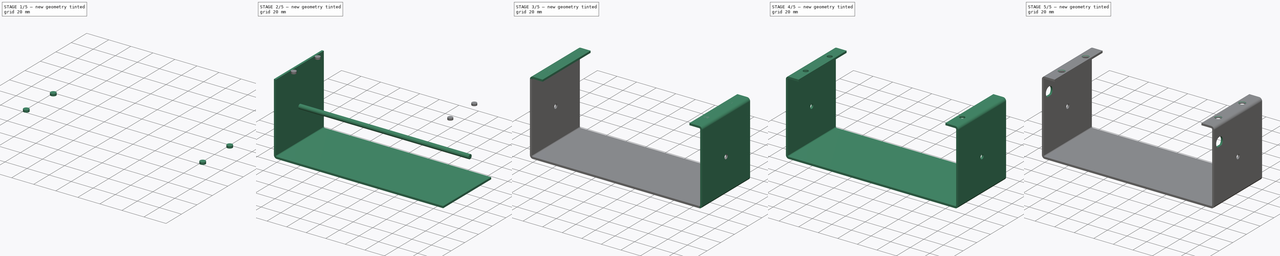
[diagram: build sequence overview — one tinted view per stage of 5, left to right]
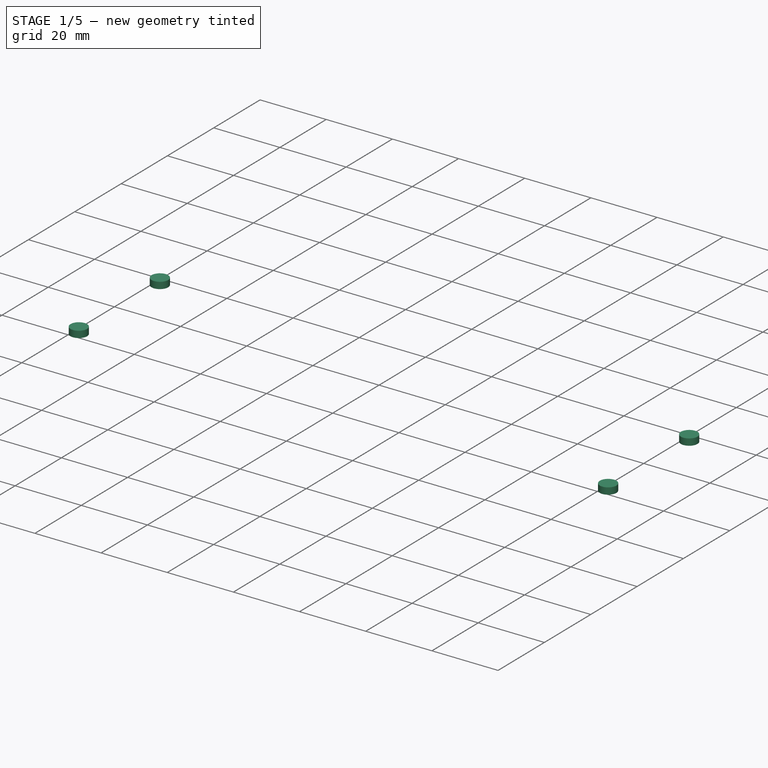
[diagram: stage 1 of 5 — iso view after this stage's code; geometry added in this stage tinted green]
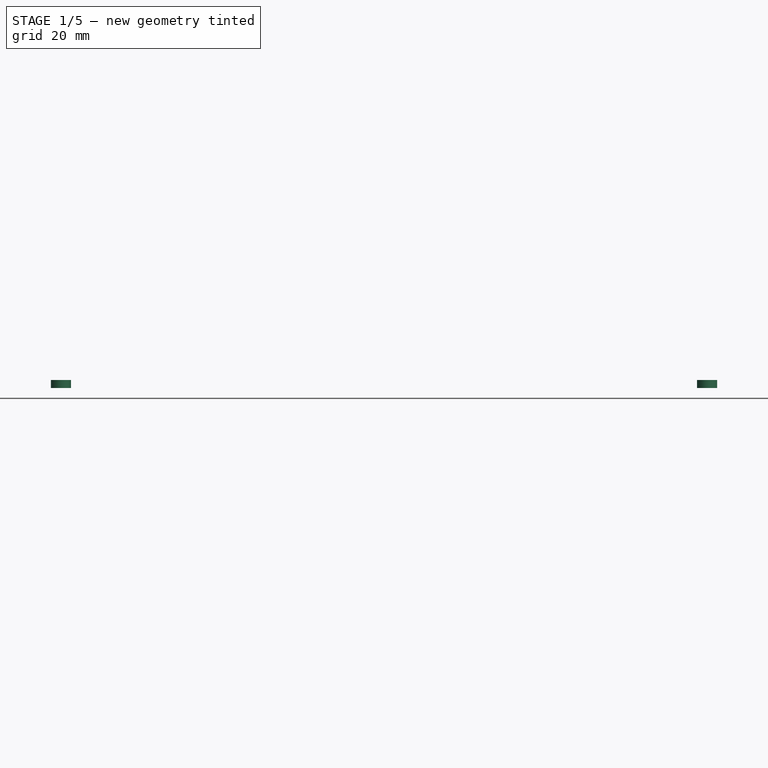
[diagram: stage 1 of 5 — front view after this stage's code; geometry added in this stage tinted green]
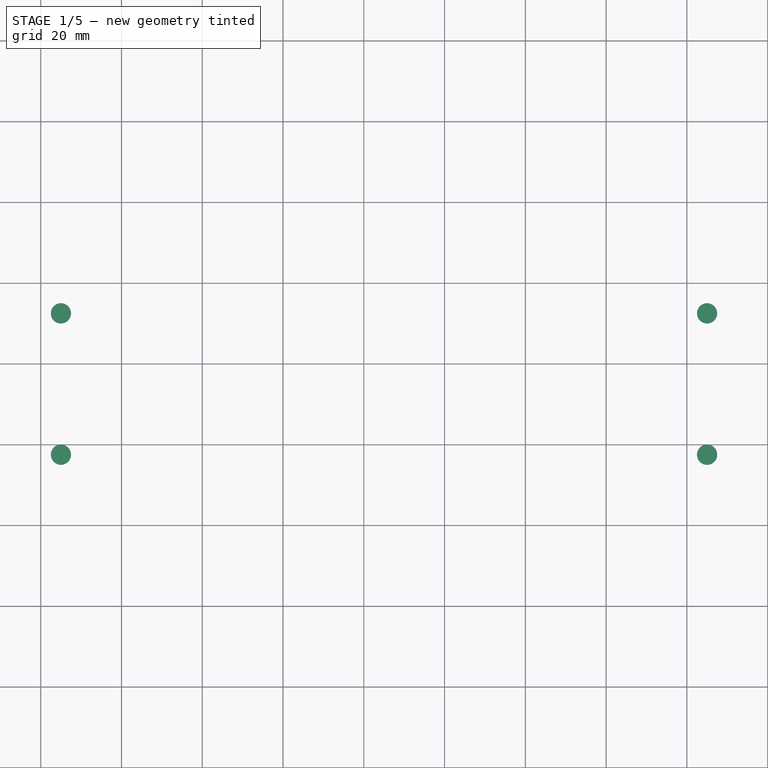
[diagram: stage 1 of 5 — top view after this stage's code; geometry added in this stage tinted green]
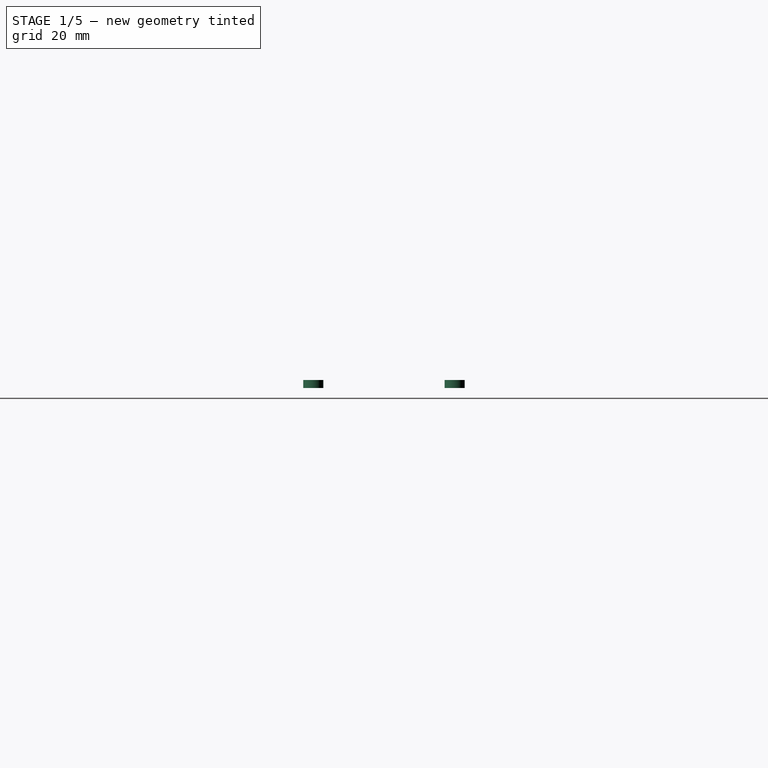
[diagram: stage 1 of 5 — right view after this stage's code; geometry added in this stage tinted green]
FCSTD DOCUMENT  (FreeCAD 0.17R11624 (Git))
Label: cover_base
License: All rights reserved
LicenseURL: http://en.wikipedia.org/wiki/All_rights_reserved
objects: Drawing::FeatureViewPython×39, Part::Cut×6, Part::Cylinder×5, Part::FeaturePython×4, Drawing::FeatureViewPart×4, Part::Box×1, Sketcher::SketchObject×1, Part::Extrusion×1, Part::Chamfer×1, Drawing::FeaturePage×1
note: 19 computed .brp shape members not serialized (recipe doc carries the construction recipe); baked Part::Feature solids carry a one-line shape summary decoded from their .brp

FEATURE [Part::Cylinder] Cylinder001  label="Cover Top Mount"
  Angle = 360
  AttacherType = Attacher::AttachEngine3D
  Height = 2
  Placement = pos=(5,17.5,74) rot=(0,0,1;0rad)
  Radius = 2.5
FEATURE [Part::Cylinder] Cylinder002  label="Cover Top Mount001"
  Angle = 360
  AttacherType = Attacher::AttachEngine3D
  Height = 2
  Placement = pos=(5,52.5,74) rot=(0,0,1;0rad)
  Radius = 2.5
FEATURE [Part::Cylinder] Cylinder003  label="Cover Top Mount002"
  Angle = 360
  AttacherType = Attacher::AttachEngine3D
  Height = 2
  Placement = pos=(165,17.5,74) rot=(0,0,1;0rad)
  Radius = 2.5
FEATURE [Part::Cylinder] Cylinder004  label="Cover Top Mount003"
  Angle = 360
  AttacherType = Attacher::AttachEngine3D
  Height = 2
  Placement = pos=(165,52.5,74) rot=(0,0,1;0rad)
  Radius = 2.5
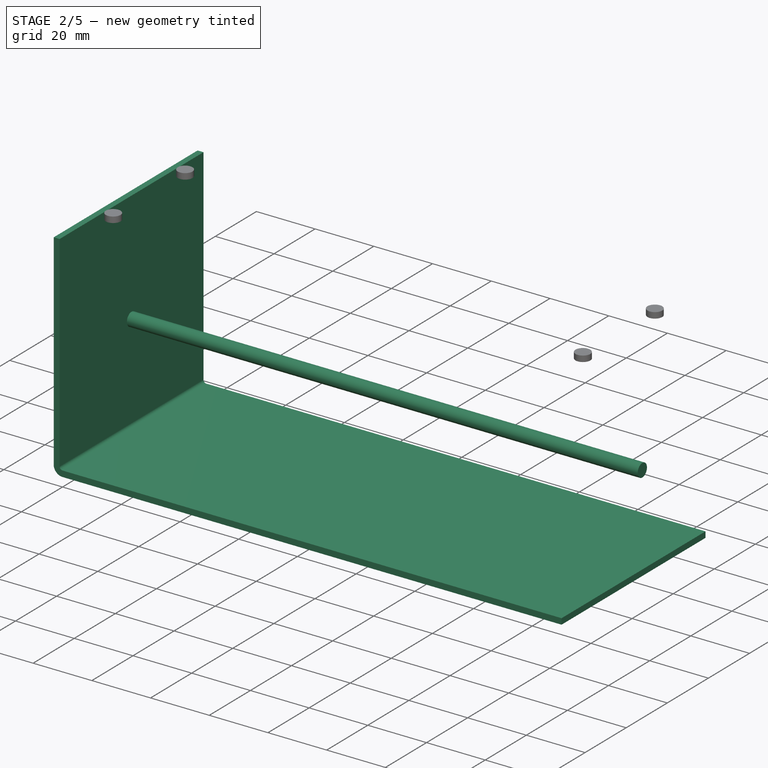
[diagram: stage 2 of 5 — iso view after this stage's code; geometry added in this stage tinted green]
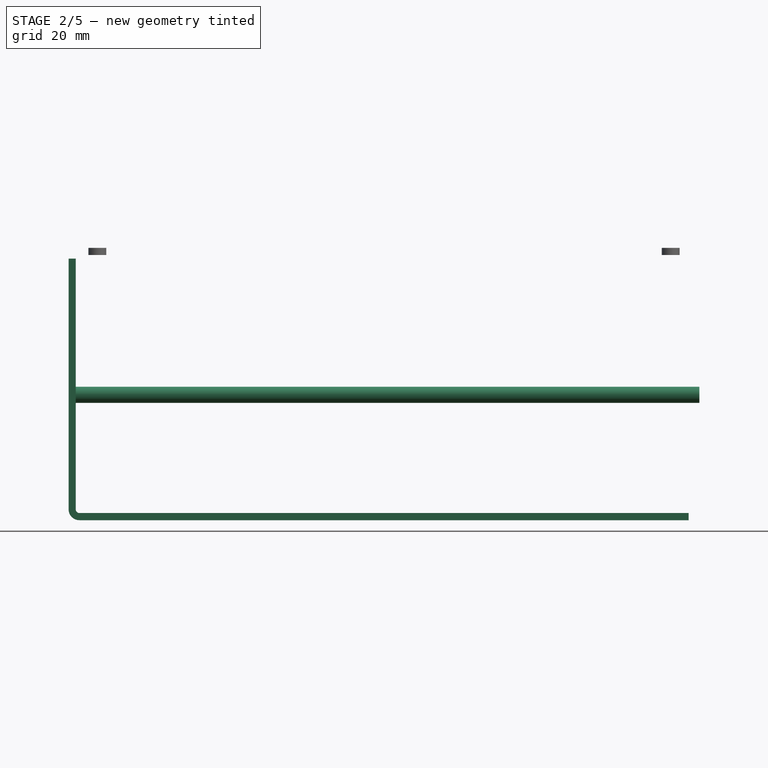
[diagram: stage 2 of 5 — front view after this stage's code; geometry added in this stage tinted green]
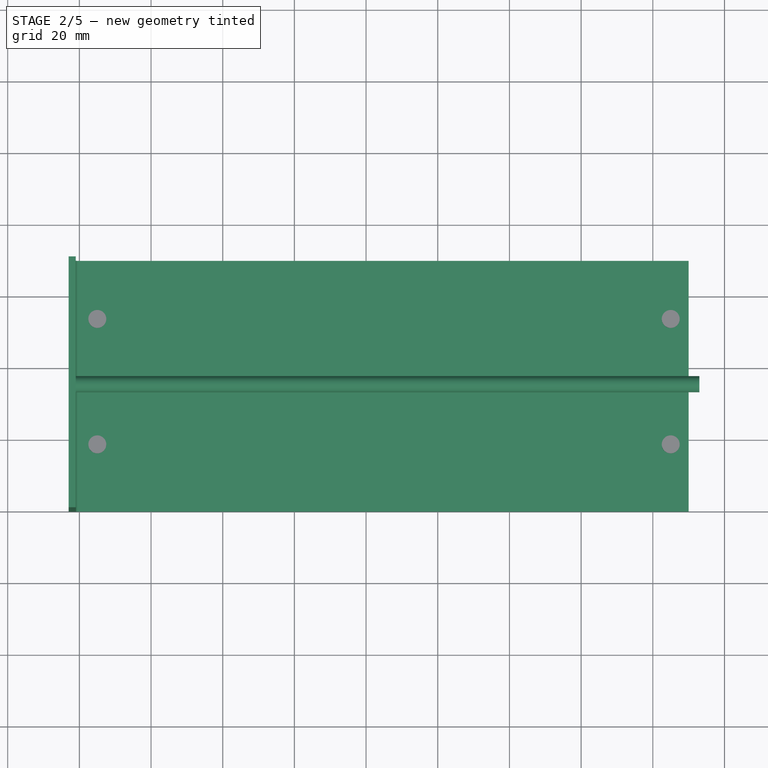
[diagram: stage 2 of 5 — top view after this stage's code; geometry added in this stage tinted green]
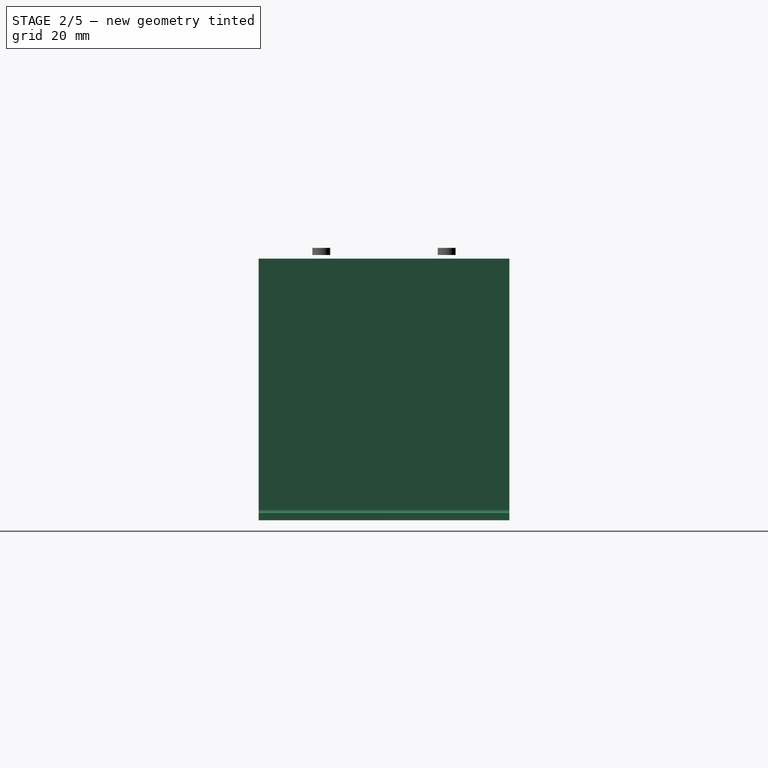
[diagram: stage 2 of 5 — right view after this stage's code; geometry added in this stage tinted green]
FEATURE [Part::Box] Box  label="Cube"
  AttacherType = Attacher::AttachEngine3D
  Height = 2
  Length = 170
  Width = 70
FEATURE [Part::FeaturePython] Bend  label="Left Wall"  # WARN: FeaturePython — macro-defined, semantics opaque (R4)
  angle = 90
  baseObject = -> Box [Face1]
  gap1 = 0
  gap2 = 0
  invert = false
  length = 70
  radius = 1
  reliefd = 1
  reliefw = 0.5
FEATURE [Part::Cylinder] Cylinder  label="Core Mount"
  Angle = 360
  AttacherType = Attacher::AttachEngine3D
  Height = 176
  Placement = pos=(-3,35,35) rot=(0,1,0;1.5708rad)
  Radius = 2.25
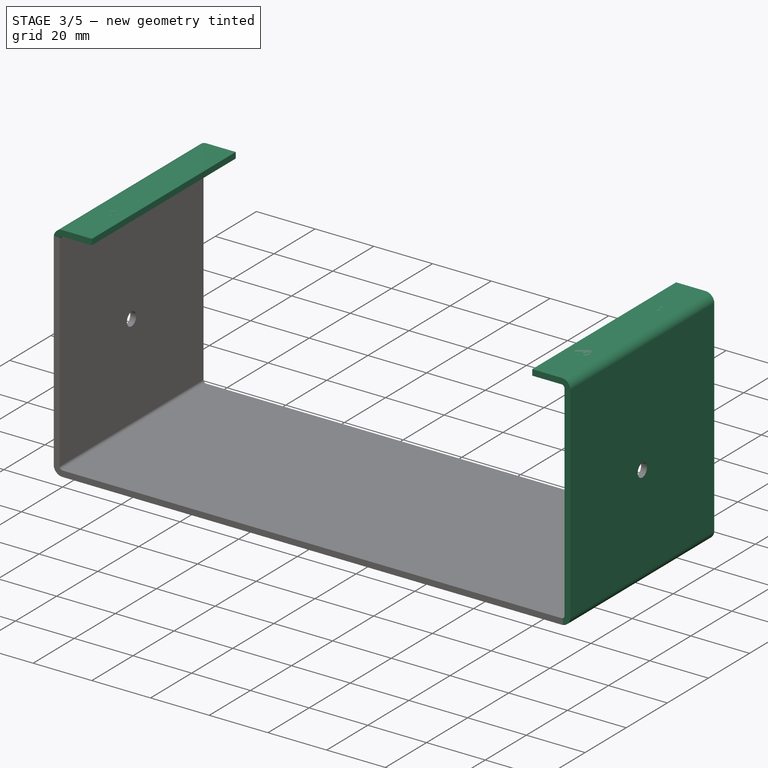
[diagram: stage 3 of 5 — iso view after this stage's code; geometry added in this stage tinted green]
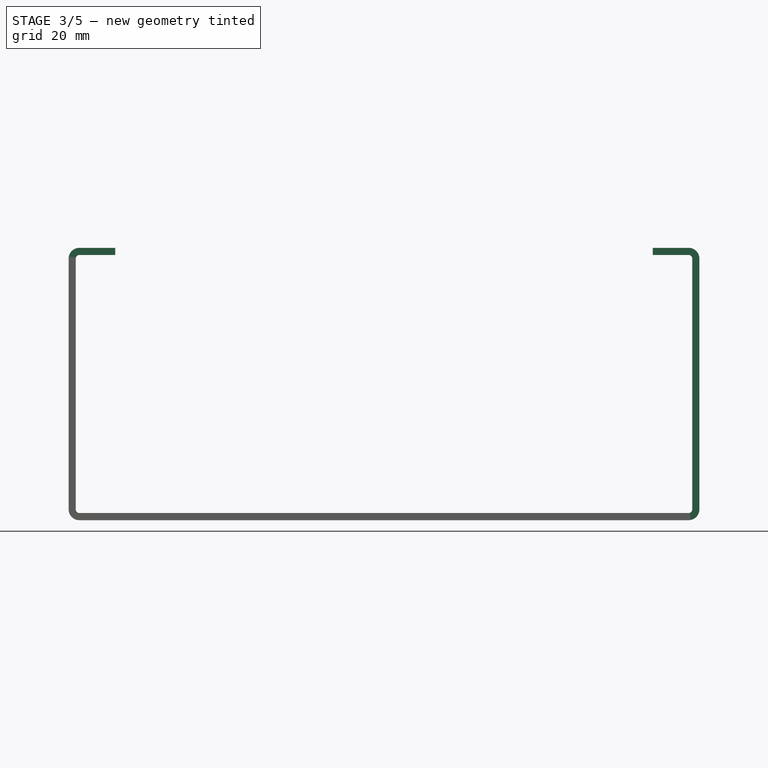
[diagram: stage 3 of 5 — front view after this stage's code; geometry added in this stage tinted green]
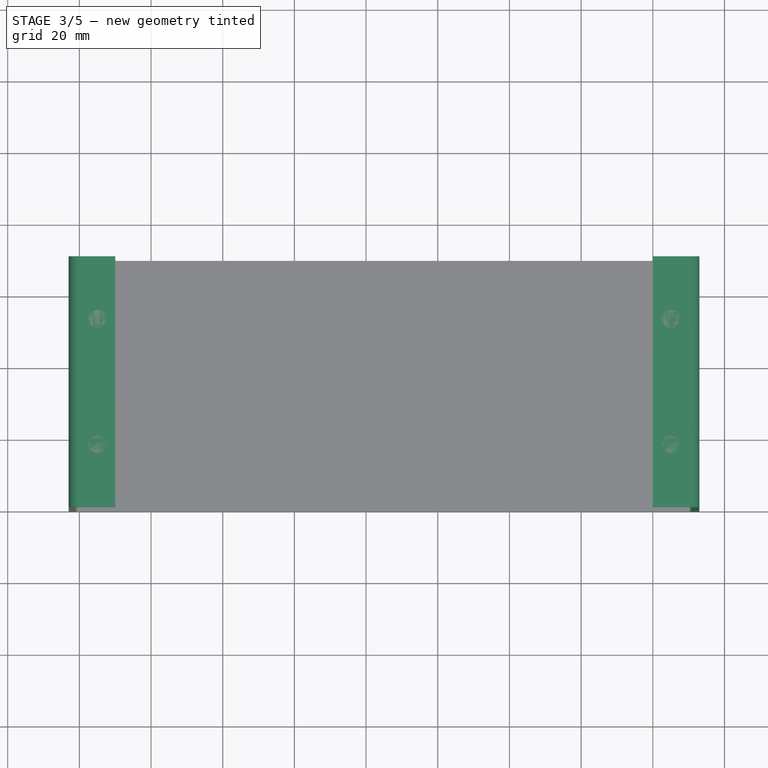
[diagram: stage 3 of 5 — top view after this stage's code; geometry added in this stage tinted green]
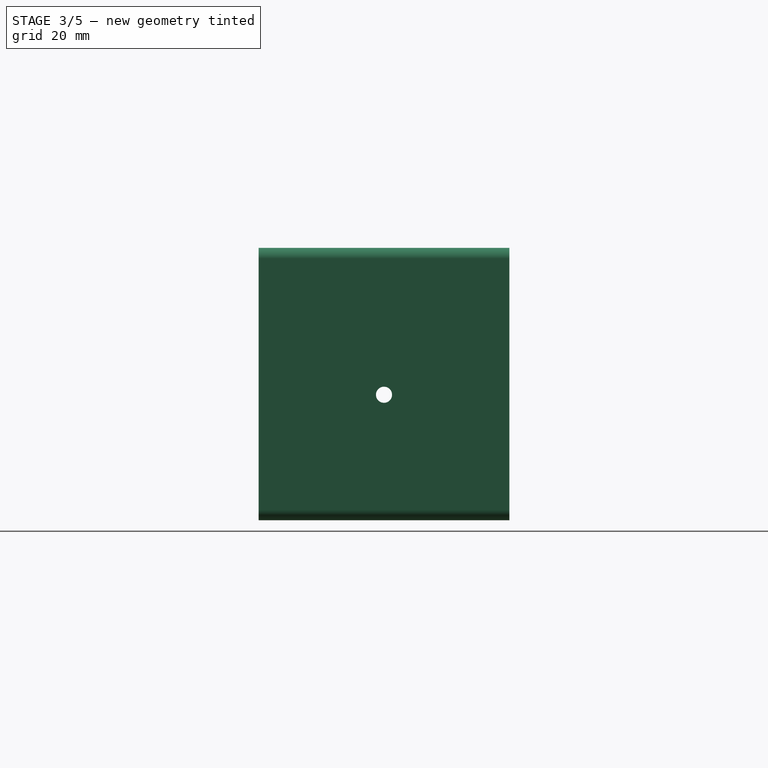
[diagram: stage 3 of 5 — right view after this stage's code; geometry added in this stage tinted green]
FEATURE [Part::FeaturePython] Bend001  label="Right Wall"  # WARN: FeaturePython — macro-defined, semantics opaque (R4)
  angle = 90
  baseObject = -> Bend [Face14]
  gap1 = 0
  gap2 = 0
  invert = false
  length = 70
  radius = 1
  reliefd = 1
  reliefw = 0.5
FEATURE [Part::FeaturePython] Bend002  label="Top Left Flange"  # WARN: FeaturePython — macro-defined, semantics opaque (R4)
  angle = 90
  baseObject = -> Bend001 [Face22]
  gap1 = 0
  gap2 = 0
  invert = false
  length = 10
  radius = 1
  reliefd = 1
  reliefw = 0.5
FEATURE [Part::FeaturePython] Bend003  label="Top Right Flange"  # WARN: FeaturePython — macro-defined, semantics opaque (R4)
  angle = 90
  baseObject = -> Bend002 [Face30]
  gap1 = 0
  gap2 = 0
  invert = false
  length = 10
  radius = 1
  reliefd = 1
  reliefw = 0.5
FEATURE [Part::Cut] Cut
  Base = -> Bend003
  Tool = -> Cylinder
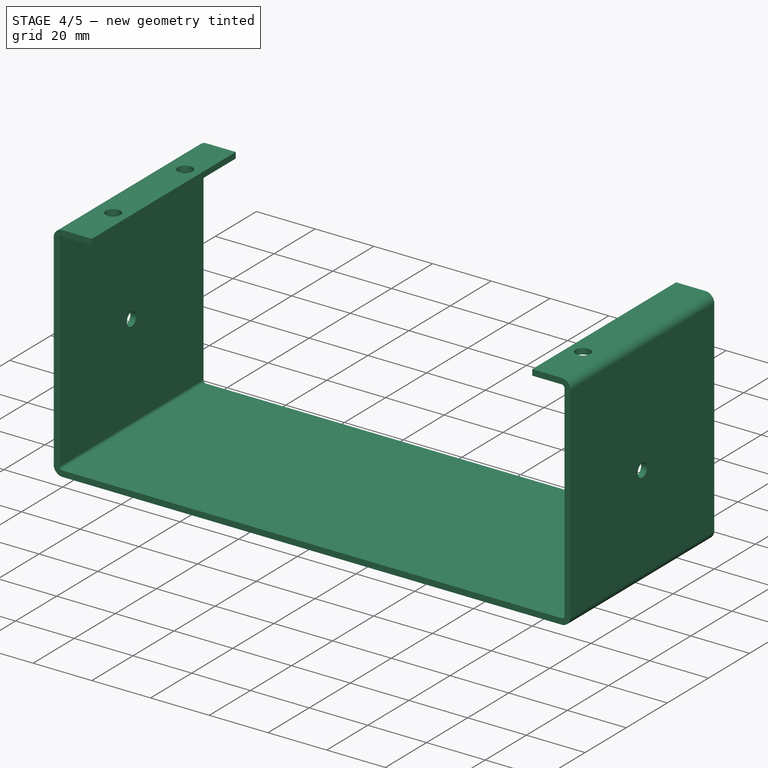
[diagram: stage 4 of 5 — iso view after this stage's code; geometry added in this stage tinted green]
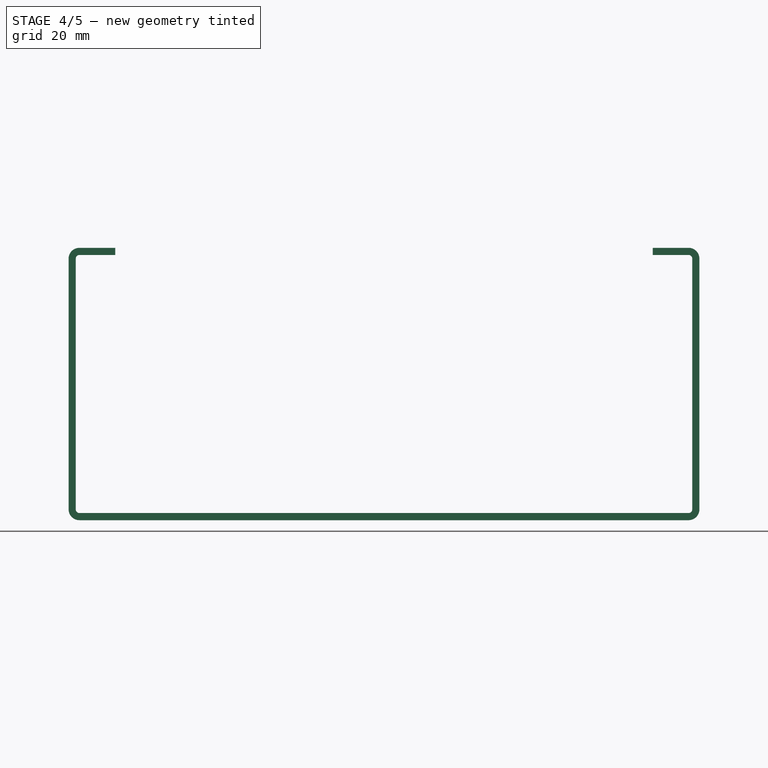
[diagram: stage 4 of 5 — front view after this stage's code; geometry added in this stage tinted green]
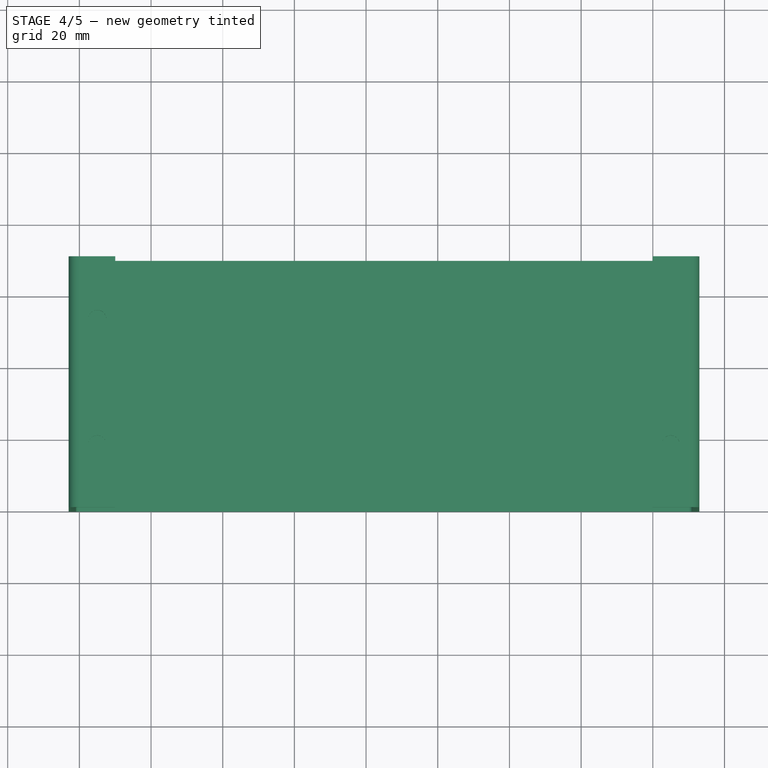
[diagram: stage 4 of 5 — top view after this stage's code; geometry added in this stage tinted green]
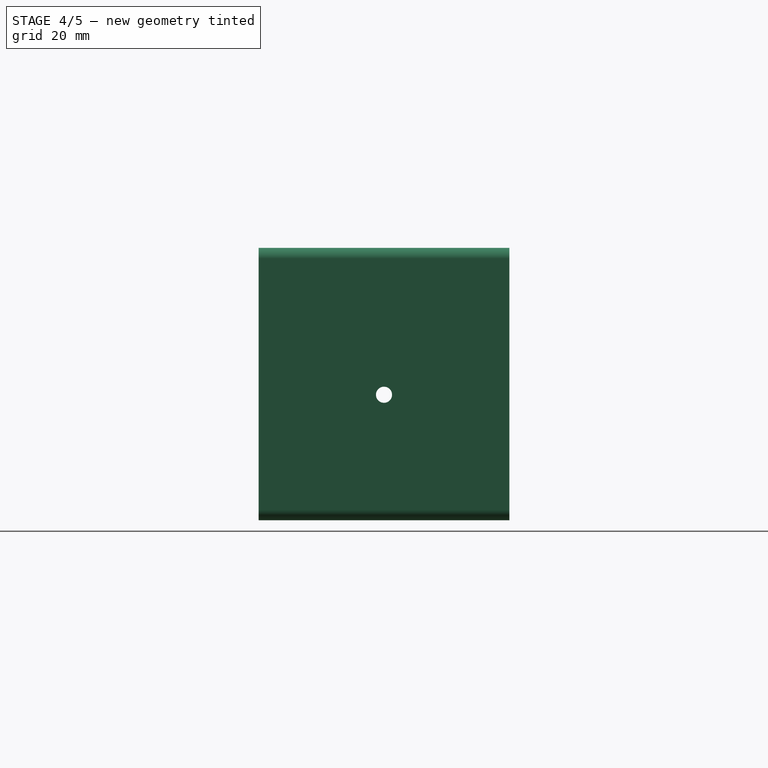
[diagram: stage 4 of 5 — right view after this stage's code; geometry added in this stage tinted green]
FEATURE [Part::Cut] Cut001
  Base = -> Cut
  Tool = -> Cylinder001
FEATURE [Part::Cut] Cut002
  Base = -> Cut001
  Tool = -> Cylinder002
FEATURE [Part::Cut] Cut003
  Base = -> Cut002
  Tool = -> Cylinder003
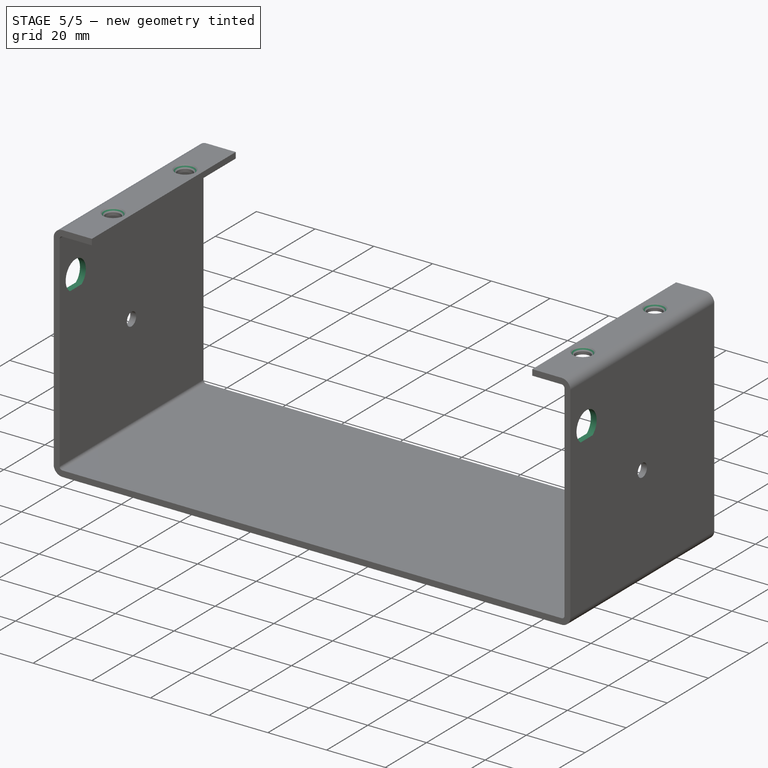
[diagram: stage 5 of 5 — iso view after this stage's code; geometry added in this stage tinted green]
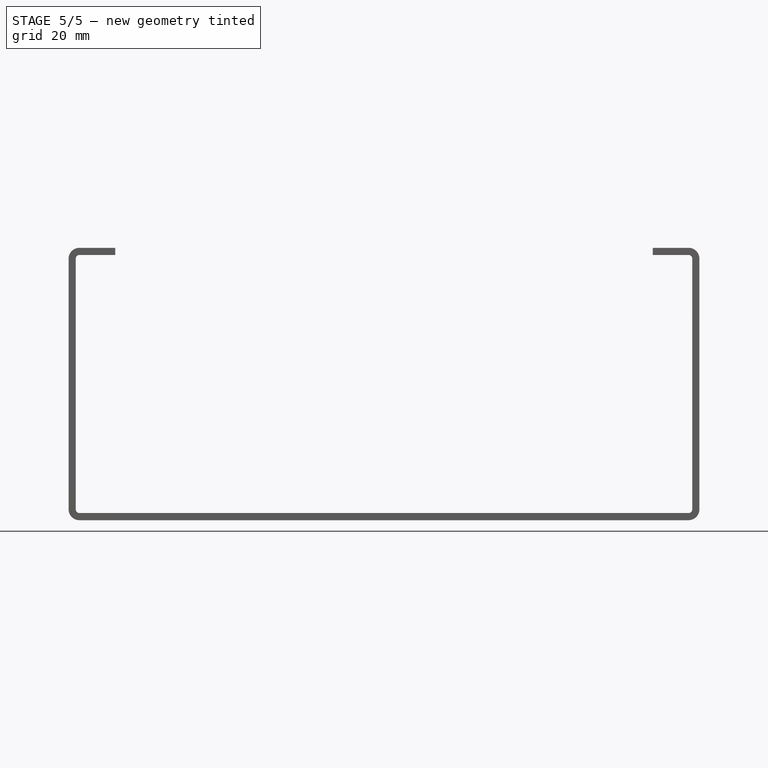
[diagram: stage 5 of 5 — front view after this stage's code; geometry added in this stage tinted green]
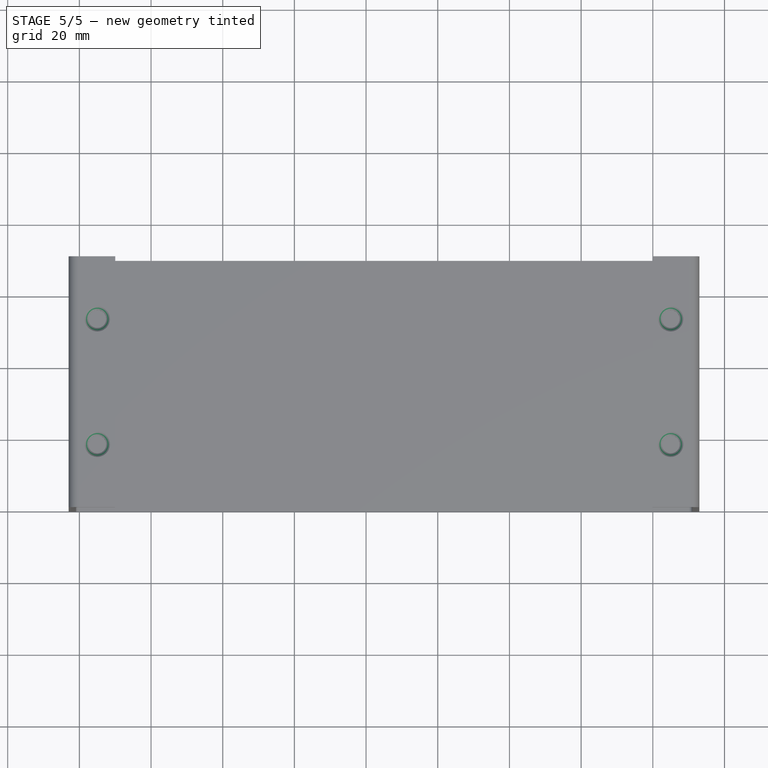
[diagram: stage 5 of 5 — top view after this stage's code; geometry added in this stage tinted green]
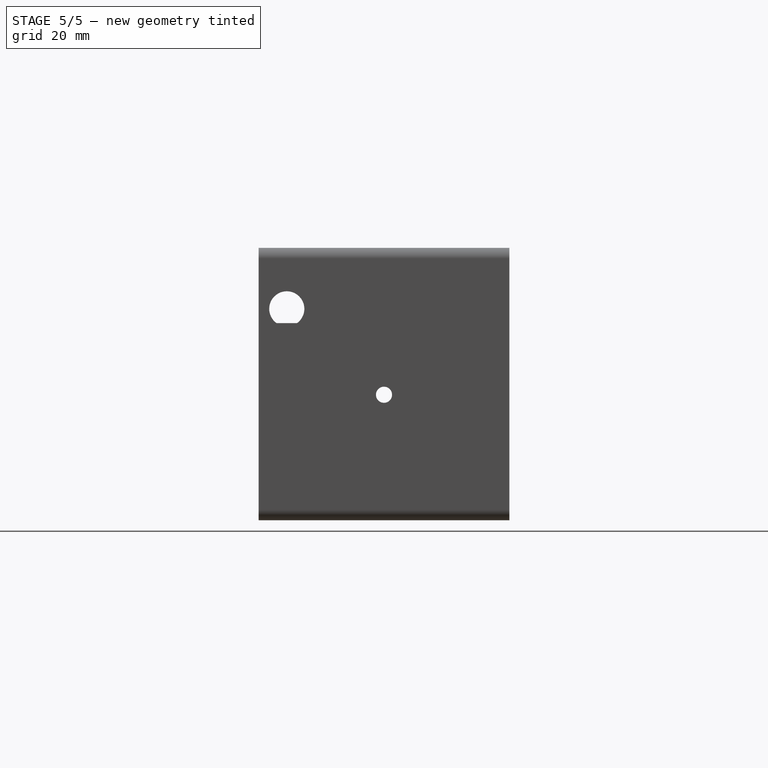
[diagram: stage 5 of 5 — right view after this stage's code; geometry added in this stage tinted green]
FEATURE [Part::Cut] Cut004
  Base = -> Cut003
  Tool = -> Cylinder004
FEATURE [Sketcher::SketchObject] Sketch
  MapMode = 5
  Placement = pos=(173,0,0) rot=(0.57735,0.57735,0.57735;2.0944rad)
  Support = -> [Cut004]
  sketch-geometry (2):
    g0: LineSegment StartX=10.75 StartY=55 StartZ=0 EndX=5 EndY=55 EndZ=0
    g1: ArcOfCircle CenterX=7.875 CenterY=58.9679 CenterZ=0 NormalX=0 NormalY=0 NormalZ=1 Radius=4.9 StartAngle=5.33941 EndAngle=10.3686
  constraints (7):
    c: Horizontal(g0)
    c: DistanceX(g-1,g0) = 5
    c: DistanceX(g-1,g0) = 10.75
    c: DistanceY(g-1,g0) = 55
    c: Radius(g1) = 4.9
    c: Coincident(g1,g0)
    c: Coincident(g1,g0)
FEATURE [Part::Extrusion] Extrude
  Base = -> Sketch
  Dir = (1,0,0)
  DirMode = 2
  FaceMakerClass = Part::FaceMakerBullseye
  LengthFwd = 176
  LengthRev = 0
  Reversed = true
  Solid = true
  Symmetric = false
FEATURE [Part::Cut] Cut005
  Base = -> Cut004
  Tool = -> Extrude
FEATURE [Drawing::FeatureViewPart] Ortho  label="Ortho_0_0"
  Direction = (1,0,0)
  HiddenWidth = 0.15
  LineWidth = 0.35
  Rotation = -90
  Scale = 0.75
  ShowHiddenLines = true
  ShowSmoothLines = false
  Source = -> Cut005
  Tolerance = 0.05
  ViewResult = <blob: 15000 chars omitted>
  Visible = false
  X = 100
  Y = 220
FEATURE [Drawing::FeatureViewPart] Ortho001  label="Ortho_1_1"
  Direction = (0.57735,0.57735,0.57735)
  HiddenWidth = 0.15
  LineWidth = 0.35
  Rotation = 120
  Scale = 0.75
  ShowHiddenLines = true
  ShowSmoothLines = false
  Source = -> Cut005
  Tolerance = 0.05
  ViewResult = <blob: 12953 chars omitted>
  Visible = false
  X = 280
  Y = 75
FEATURE [Drawing::FeatureViewPart] Ortho002  label="Ortho_0_1"
  Direction = (0,0,1)
  HiddenWidth = 0.15
  LineWidth = 0.35
  Rotation = 90
  Scale = 0.75
  ShowHiddenLines = true
  ShowSmoothLines = false
  Source = -> Cut005
  Tolerance = 0.05
  ViewResult = <blob: 14143 chars omitted>
  Visible = false
  X = 100
  Y = 20
FEATURE [Drawing::FeatureViewPart] Ortho003  label="Ortho_1_0"
  Direction = (0,1,0)
  HiddenWidth = 0.15
  LineWidth = 0.35
  Rotation = -90
  Scale = 0.75
  ShowHiddenLines = true
  ShowSmoothLines = false
  Source = -> Cut005
  Tolerance = 0.05
  ViewResult = <blob: 10704 chars omitted>
  Visible = false
  X = 320
  Y = 220
FEATURE [Drawing::FeatureViewPython] dim001  # drawing view (typed FeaturePython)
  Rotation = 0
  ViewResult = <g> <line x1="98.000000" y1="163.000000" x2="69.358456" y2="163.000000" style="stroke:rgb(0,0,255);stroke-width:0.50" />\n<line x1="98.000000" y1="220.000000" x2="69.358456" y2="220.000000" style="stroke:rgb(0,0,255);stroke-width:0.50" />\n<line x1="70.358456" y1="163.000000" x2="70.358456" y2="220.000000" style="stroke:rgb(0,0,255);stroke-width:0.50" />\n<polygon points="70.358456,163.000000 69.358456,166.000000 70.358456,167.000000 71.358456,166.000000" style="fill:rgb(0,0,255);stroke:rgb(0,0,255);stroke-width:0" />\n<polygon points="70.358456,220.000000 71.358456,217.000000 70.358456,216.000000 69.358456,217.000000" style="fill:rgb(0,0,255);stroke:rgb(0,0,255);stroke-width:0" />\n<text x="68.358456" y="191.500000" font-family="inherit" font-size="3.6" fill="rgb(0,0,255)" text-anchor="middle" transform="rotate(-90.000000 68.358456,191.500000)" >76</text> </g> 
  Visible = false
  X = 0
  Y = 0
  arrowL1 = 3
  arrowL2 = 1
  arrowW = 2
  arrow_scheme = 0
  autoPlaceOffset = 2
  autoPlaceText = true
  click1_x = 70.3585
  click1_y = 202.51
  click2_x = 70.3585
  click2_y = 202.51
  comma_decimal_place = false
  dimension_line_overshoot = 1
  gap_datum_points = 2
  halfDimension_linear = false
  lineColor = rgb(0,0,255)
  strokeWidth = 0.5
  textFormat_linear = %(value)3.3f
  textRenderer_color = rgb(0,0,255)
  textRenderer_family = inherit
  textRenderer_size = 3.6
  unit_custom_scale = 1
  unit_scheme = 0
FEATURE [Drawing::FeatureViewPython] dim002  # drawing view (typed FeaturePython)
  Rotation = 0
  ViewResult = <g> <line x1="101.750000" y1="178.750000" x2="79.285237" y2="178.750000" style="stroke:rgb(0,0,255);stroke-width:0.50" />\n<line x1="98.000000" y1="220.000000" x2="79.285237" y2="220.000000" style="stroke:rgb(0,0,255);stroke-width:0.50" />\n<line x1="80.285237" y1="178.750000" x2="80.285237" y2="220.000000" style="stroke:rgb(0,0,255);stroke-width:0.50" />\n<polygon points="80.285237,178.750000 79.285237,181.750000 80.285237,182.750000 81.285237,181.750000" style="fill:rgb(0,0,255);stroke:rgb(0,0,255);stroke-width:0" />\n<polygon points="80.285237,220.000000 81.285237,217.000000 80.285237,216.000000 79.285237,217.000000" style="fill:rgb(0,0,255);stroke:rgb(0,0,255);stroke-width:0" />\n<text x="78.285237" y="199.375000" font-family="inherit" font-size="3.6" fill="rgb(0,0,255)" text-anchor="middle" transform="rotate(-90.000000 78.285237,199.375000)" >55</text> </g> 
  Visible = false
  X = 0
  Y = 0
  arrowL1 = 3
  arrowL2 = 1
  arrowW = 2
  arrow_scheme = 0
  autoPlaceOffset = 2
  autoPlaceText = true
  click1_x = 80.2852
  click1_y = 207.888
  click2_x = 80.2852
  click2_y = 207.888
  comma_decimal_place = false
  dimension_line_overshoot = 1
  gap_datum_points = 2
  halfDimension_linear = false
  lineColor = rgb(0,0,255)
  strokeWidth = 0.5
  textFormat_linear = %(value)3.3f
  textRenderer_color = rgb(0,0,255)
  textRenderer_family = inherit
  textRenderer_size = 3.6
  unit_custom_scale = 1
  unit_scheme = 0
FEATURE [Drawing::FeatureViewPython] centerLines001  # drawing view (typed FeaturePython)
  Rotation = 0
  ViewResult = <g transform="scale(0.750000,0.750000)" stroke="rgb(0,0,255)"  stroke-width="0.426667" > <path d="M 150.833333,31.666667 L 150.833333,31.462400 "/>\n<path d="M 150.833333,31.666667 L 154.833333,31.666667 M 157.500000,31.666667 L 165.500000,31.666667 M 168.166667,31.666667 L 172.166667,31.666667 M 174.833333,31.666667 L 182.833333,31.666667 M 185.500000,31.666667 L 189.500000,31.666667 M 192.166667,31.666667 L 200.166667,31.666667 M 202.833333,31.666667 L 203.206696,31.666667 "/>\n<path d="M 150.833333,31.666667 L 150.833333,32.039692 "/>\n<path d="M 150.833333,31.666667 L 146.833333,31.666667 M 144.166667,31.666667 L 136.166667,31.666667 "/> </g> 
  Visible = false
  X = 0
  Y = 0
  centerLine_color = rgb(0,0,255)
  centerLine_len_dash = 6
  centerLine_len_dot = 3
  centerLine_len_gap = 2
  centerLine_width = 0.32
  click1_x = 152.405
  click1_y = 23.5968
  click2_x = 100.232
  click2_y = 24.0298
FEATURE [Drawing::FeatureViewPython] centerLines002  # drawing view (typed FeaturePython)
  Rotation = 0
  ViewResult = <g transform="scale(0.750000,0.750000)" stroke="rgb(0,0,255)"  stroke-width="0.426667" > <path d="M 150.833333,31.666667 L 150.833333,35.666667 M 150.833333,38.333333 L 150.833333,46.333333 M 150.833333,49.000000 L 150.833333,53.000000 M 150.833333,55.666667 L 150.833333,63.666667 M 150.833333,66.333333 L 150.833333,70.333333 M 150.833333,73.000000 L 150.833333,81.000000 M 150.833333,83.666667 L 150.833333,87.666667 M 150.833333,90.333333 L 150.833333,98.333333 M 150.833333,101.000000 L 150.833333,105.000000 M 150.833333,107.666667 L 150.833333,115.666667 M 150.833333,118.333333 L 150.833333,122.333333 M 150.833333,125.000000 L 150.833333,133.000000 M 150.833333,135.666667 L 150.833333,139.666667 M 150.833333,142.333333 L 150.833333,150.333333 M 150.833333,153.000000 L 150.833333,157.000000 M 150.833333,159.666667 L 150.833333,167.666667 M 150.833333,170.333333 L 150.833333,174.333333 M 150.833333,177.000000 L 150.833333,185.000000 M 150.833333,187.666667 L 150.833333,191.666667 M 150.833333,194.333333 L 150.833333,199.097044 "/>\n<path d="M 150.833333,31.666667 L 149.969202,31.666667 "/>\n<path d="M 150.833333,31.666667 L 150.833333,27.666667 M 150.833333,25.000000 L 150.833333,23.788218 "/>\n<path d="M 150.833333,31.666667 L 151.003472,31.666667 "/> </g> 
  Visible = false
  X = 0
  Y = 0
  centerLine_color = rgb(0,0,255)
  centerLine_len_dash = 6
  centerLine_len_dot = 3
  centerLine_len_gap = 2
  centerLine_width = 0.32
  click1_x = 112.477
  click1_y = 149.323
  click2_x = 113.253
  click2_y = 17.8412
FEATURE [Drawing::FeatureViewPython] centerLines003  # drawing view (typed FeaturePython)
  Rotation = 0
  ViewResult = <g transform="scale(0.750000,0.750000)" stroke="rgb(0,0,255)"  stroke-width="0.426667" > <path d="M 150.833333,31.666667 L 150.833333,35.666667 M 150.833333,38.333333 L 150.833333,46.333333 M 150.833333,49.000000 L 150.833333,53.000000 M 150.833333,55.666667 L 150.833333,63.666667 M 150.833333,66.333333 L 150.833333,70.333333 M 150.833333,73.000000 L 150.833333,81.000000 M 150.833333,83.666667 L 150.833333,87.666667 M 150.833333,90.333333 L 150.833333,98.333333 M 150.833333,101.000000 L 150.833333,105.000000 M 150.833333,107.666667 L 150.833333,115.666667 M 150.833333,118.333333 L 150.833333,122.333333 M 150.833333,125.000000 L 150.833333,133.000000 M 150.833333,135.666667 L 150.833333,139.666667 M 150.833333,142.333333 L 150.833333,150.333333 M 150.833333,153.000000 L 150.833333,157.000000 M 150.833333,159.666667 L 150.833333,167.666667 M 150.833333,170.333333 L 150.833333,174.333333 M 150.833333,177.000000 L 150.833333,185.000000 M 150.833333,187.666667 L 150.833333,191.666667 M 150.833333,194.333333 L 150.833333,199.097044 "/>\n<path d="M 150.833333,31.666667 L 154.833333,31.666667 M 157.500000,31.666667 L 165.500000,31.666667 M 168.166667,31.666667 L 172.166667,31.666667 M 174.833333,31.666667 L 182.833333,31.666667 "/>\n<path d="M 150.833333,31.666667 L 150.833333,27.666667 M 150.833333,25.000000 L 150.833333,23.788218 "/>\n<path d="M 150.833333,31.666667 L 154.833333,31.666667 M 157.500000,31.666667 L 165.500000,31.666667 M 168.166667,31.666667 L 172.166667,31.666667 M 174.833333,31.666667 L 182.833333,31.666667 M 185.500000,31.666667 L 185.651529,31.666667 "/> </g> 
  Visible = false
  X = 0
  Y = 0
  centerLine_color = rgb(0,0,255)
  centerLine_len_dash = 6
  centerLine_len_dot = 3
  centerLine_len_gap = 2
  centerLine_width = 0.32
  click1_x = 138.851
  click1_y = 149.323
  click2_x = 139.239
  click2_y = 17.8412
FEATURE [Drawing::FeatureViewPython] centerLines004  # drawing view (typed FeaturePython)
  Rotation = 0
  ViewResult = <blob: 2398 chars omitted>
  Visible = false
  X = 0
  Y = 0
  centerLine_color = rgb(0,0,255)
  centerLine_len_dash = 6
  centerLine_len_dot = 3
  centerLine_len_gap = 2
  centerLine_width = 0.32
  click1_x = 99.6778
  click1_y = 143.505
  click2_x = 152.426
  click2_y = 144.281
FEATURE [Drawing::FeatureViewPython] centerLines005  # drawing view (typed FeaturePython)
  Rotation = 0
  ViewResult = <g transform="scale(0.750000,0.750000)" stroke="rgb(0,0,255)"  stroke-width="0.426667" > <path d="M 168.333333,258.333333 L 168.333333,262.333333 M 168.333333,265.000000 L 168.333333,273.000000 M 168.333333,275.666667 L 168.333333,279.666667 M 168.333333,282.333333 L 168.333333,290.333333 M 168.333333,293.000000 L 168.333333,293.443481 "/>\n<path d="M 168.333333,258.333333 L 168.248482,258.333333 "/>\n<path d="M 168.333333,258.333333 L 168.333333,254.333333 M 168.333333,251.666667 L 168.333333,243.666667 M 168.333333,241.000000 L 168.333333,237.000000 M 168.333333,234.333333 L 168.333333,226.333333 M 168.333333,223.666667 L 168.333333,219.666667 M 168.333333,217.000000 L 168.333333,216.966898 "/>\n<path d="M 168.333333,258.333333 L 168.248482,258.333333 "/> </g> 
  Visible = false
  X = 0
  Y = 0
  centerLine_color = rgb(0,0,255)
  centerLine_len_dash = 6
  centerLine_len_dot = 3
  centerLine_len_gap = 2
  centerLine_width = 0.32
  click1_x = 126.186
  click1_y = 220.083
  click2_x = 126.186
  click2_y = 162.725
FEATURE [Drawing::FeatureViewPython] centerLines006  # drawing view (typed FeaturePython)
  Rotation = 0
  ViewResult = <g transform="scale(0.750000,0.750000)" stroke="rgb(0,0,255)"  stroke-width="0.426667" > <path d="M 168.333333,258.333333 L 168.333333,256.621422 "/>\n<path d="M 168.333333,258.333333 L 164.333333,258.333333 M 161.666667,258.333333 L 153.666667,258.333333 M 151.000000,258.333333 L 147.000000,258.333333 M 144.333333,258.333333 L 136.333333,258.333333 "/>\n<path d="M 168.333333,258.333333 L 168.333333,256.054929 "/>\n<path d="M 168.333333,258.333333 L 172.333333,258.333333 M 175.000000,258.333333 L 183.000000,258.333333 M 185.666667,258.333333 L 189.666667,258.333333 M 192.333333,258.333333 L 200.333333,258.333333 M 203.000000,258.333333 L 203.371061,258.333333 "/> </g> 
  Visible = false
  X = 0
  Y = 0
  centerLine_color = rgb(0,0,255)
  centerLine_len_dash = 6
  centerLine_len_dot = 3
  centerLine_len_gap = 2
  centerLine_width = 0.32
  click1_x = 100.269
  click1_y = 192.466
  click2_x = 152.528
  click2_y = 192.041
FEATURE [Drawing::FeatureViewPython] dim003  # drawing view (typed FeaturePython)
  Rotation = 0
  ViewResult = <g> <line x1="98.000000" y1="220.000000" x2="89.902668" y2="220.000000" style="stroke:rgb(0,0,255);stroke-width:0.50" />\n<line x1="100.249947" y1="193.750000" x2="89.902668" y2="193.750000" style="stroke:rgb(0,0,255);stroke-width:0.50" />\n<line x1="90.902668" y1="220.000000" x2="90.902668" y2="193.750000" style="stroke:rgb(0,0,255);stroke-width:0.50" />\n<polygon points="90.902668,220.000000 91.902668,217.000000 90.902668,216.000000 89.902668,217.000000" style="fill:rgb(0,0,255);stroke:rgb(0,0,255);stroke-width:0" />\n<polygon points="90.902668,193.750000 89.902668,196.750000 90.902668,197.750000 91.902668,196.750000" style="fill:rgb(0,0,255);stroke:rgb(0,0,255);stroke-width:0" />\n<text x="88.902668" y="206.875000" font-family="inherit" font-size="3.6" fill="rgb(0,0,255)" text-anchor="middle" transform="rotate(-90.000000 88.902668,206.875000)" >35</text> </g> 
  Visible = false
  X = 0
  Y = 0
  arrowL1 = 3
  arrowL2 = 1
  arrowW = 2
  arrow_scheme = 0
  autoPlaceOffset = 2
  autoPlaceText = true
  click1_x = 90.9027
  click1_y = 194.337
  click2_x = 90.9027
  click2_y = 194.337
  comma_decimal_place = false
  dimension_line_overshoot = 1
  gap_datum_points = 2
  halfDimension_linear = false
  lineColor = rgb(0,0,255)
  strokeWidth = 0.5
  textFormat_linear = %(value)3.3f
  textRenderer_color = rgb(0,0,255)
  textRenderer_family = inherit
  textRenderer_size = 3.6
  unit_custom_scale = 1
  unit_scheme = 0
FEATURE [Drawing::FeatureViewPython] centerLines007  # drawing view (typed FeaturePython)
  Rotation = 0
  ViewResult = <g transform="scale(0.750000,0.750000)" stroke="rgb(0,0,255)"  stroke-width="0.426667" > <path d="M 141.208333,234.365415 L 141.208333,230.365415 M 141.208333,227.698748 L 141.208333,219.698748 "/>\n<path d="M 141.208333,234.365415 L 140.960049,234.365415 "/>\n<path d="M 141.208333,234.365415 L 141.208333,238.365415 M 141.208333,241.032082 L 141.208333,249.032082 M 141.208333,251.698748 L 141.208333,255.698748 M 141.208333,258.365415 L 141.208333,266.365415 M 141.208333,269.032082 L 141.208333,273.032082 M 141.208333,275.698748 L 141.208333,283.698748 M 141.208333,286.365415 L 141.208333,290.365415 M 141.208333,293.032082 L 141.208333,293.215646 "/>\n<path d="M 141.208333,234.365415 L 141.695039,234.365415 "/> </g> 
  Visible = false
  X = 0
  Y = 0
  centerLine_color = rgb(0,0,255)
  centerLine_len_dash = 6
  centerLine_len_dot = 3
  centerLine_len_gap = 2
  centerLine_width = 0.32
  click1_x = 105.72
  click1_y = 163.062
  click2_x = 106.271
  click2_y = 219.912
FEATURE [Drawing::FeatureViewPython] dim004  # drawing view (typed FeaturePython)
  Rotation = 0
  ViewResult = <g> <line x1="100.000000" y1="163.250000" x2="100.000000" y2="157.793488" style="stroke:rgb(0,0,255);stroke-width:0.50" />\n<line x1="105.906250" y1="162.774008" x2="105.906250" y2="157.793488" style="stroke:rgb(0,0,255);stroke-width:0.50" />\n<line x1="100.000000" y1="158.793488" x2="105.906250" y2="158.793488" style="stroke:rgb(0,0,255);stroke-width:0.50" />\n<polygon points="100.000000,158.793488 97.000000,157.793488 96.000000,158.793488 97.000000,159.793488" style="fill:rgb(0,0,255);stroke:rgb(0,0,255);stroke-width:0" />\n<polygon points="105.906250,158.793488 108.906250,159.793488 109.906250,158.793488 108.906250,157.793488" style="fill:rgb(0,0,255);stroke:rgb(0,0,255);stroke-width:0" />\n<text x="102.953125" y="156.793488" font-family="inherit" font-size="3.6" fill="rgb(0,0,255)" text-anchor="middle" transform="rotate(0.000000 102.953125,156.793488)" >7.875</text> </g> 
  Visible = false
  X = 0
  Y = 0
  arrowL1 = 3
  arrowL2 = 1
  arrowW = 2
  arrow_scheme = 0
  autoPlaceOffset = 2
  autoPlaceText = true
  click1_x = 106.204
  click1_y = 158.793
  click2_x = 106.204
  click2_y = 158.793
  comma_decimal_place = false
  dimension_line_overshoot = 1
  gap_datum_points = 2
  halfDimension_linear = false
  lineColor = rgb(0,0,255)
  strokeWidth = 0.5
  textFormat_linear = %(value)3.3f
  textRenderer_color = rgb(0,0,255)
  textRenderer_family = inherit
  textRenderer_size = 3.6
  unit_custom_scale = 1
  unit_scheme = 0
FEATURE [Drawing::FeatureViewPython] dim005  # drawing view (typed FeaturePython)
  Rotation = 0
  ViewResult = <g> <line x1="100.000000" y1="219.750000" x2="100.000000" y2="231.062308" style="stroke:rgb(0,0,255);stroke-width:0.50" />\n<line x1="126.250000" y1="222.082663" x2="126.250000" y2="231.062308" style="stroke:rgb(0,0,255);stroke-width:0.50" />\n<line x1="100.000000" y1="230.062308" x2="126.250000" y2="230.062308" style="stroke:rgb(0,0,255);stroke-width:0.50" />\n<polygon points="100.000000,230.062308 103.000000,231.062308 104.000000,230.062308 103.000000,229.062308" style="fill:rgb(0,0,255);stroke:rgb(0,0,255);stroke-width:0" />\n<polygon points="126.250000,230.062308 123.250000,229.062308 122.250000,230.062308 123.250000,231.062308" style="fill:rgb(0,0,255);stroke:rgb(0,0,255);stroke-width:0" />\n<text x="113.125000" y="228.062308" font-family="inherit" font-size="3.6" fill="rgb(0,0,255)" text-anchor="middle" transform="rotate(0.000000 113.125000,228.062308)" >35</text> </g> 
  Visible = false
  X = 0
  Y = 0
  arrowL1 = 3
  arrowL2 = 1
  arrowW = 2
  arrow_scheme = 0
  autoPlaceOffset = 2
  autoPlaceText = true
  click1_x = 125.693
  click1_y = 230.062
  click2_x = 125.693
  click2_y = 230.062
  comma_decimal_place = false
  dimension_line_overshoot = 1
  gap_datum_points = 2
  halfDimension_linear = false
  lineColor = rgb(0,0,255)
  strokeWidth = 0.5
  textFormat_linear = %(value)3.3f
  textRenderer_color = rgb(0,0,255)
  textRenderer_family = inherit
  textRenderer_size = 3.6
  unit_custom_scale = 1
  unit_scheme = 0
FEATURE [Drawing::FeatureViewPython] dim006  # drawing view (typed FeaturePython)
  Rotation = 0
  ViewResult = <g> <line x1="100.000000" y1="219.750000" x2="100.000000" y2="242.509311" style="stroke:rgb(0,0,255);stroke-width:0.50" />\n<line x1="152.500000" y1="219.750000" x2="152.500000" y2="242.509311" style="stroke:rgb(0,0,255);stroke-width:0.50" />\n<line x1="100.000000" y1="241.509311" x2="152.500000" y2="241.509311" style="stroke:rgb(0,0,255);stroke-width:0.50" />\n<polygon points="100.000000,241.509311 103.000000,242.509311 104.000000,241.509311 103.000000,240.509311" style="fill:rgb(0,0,255);stroke:rgb(0,0,255);stroke-width:0" />\n<polygon points="152.500000,241.509311 149.500000,240.509311 148.500000,241.509311 149.500000,242.509311" style="fill:rgb(0,0,255);stroke:rgb(0,0,255);stroke-width:0" />\n<text x="126.250000" y="239.509311" font-family="inherit" font-size="3.6" fill="rgb(0,0,255)" text-anchor="middle" transform="rotate(0.000000 126.250000,239.509311)" >70</text> </g> 
  Visible = false
  X = 0
  Y = 0
  arrowL1 = 3
  arrowL2 = 1
  arrowW = 2
  arrow_scheme = 0
  autoPlaceOffset = 2
  autoPlaceText = true
  click1_x = 149.26
  click1_y = 241.509
  click2_x = 149.26
  click2_y = 241.509
  comma_decimal_place = false
  dimension_line_overshoot = 1
  gap_datum_points = 2
  halfDimension_linear = false
  lineColor = rgb(0,0,255)
  strokeWidth = 0.5
  textFormat_linear = %(value)3.3f
  textRenderer_color = rgb(0,0,255)
  textRenderer_family = inherit
  textRenderer_size = 3.6
  unit_custom_scale = 1
  unit_scheme = 0
FEATURE [Drawing::FeatureViewPython] dim007  # drawing view (typed FeaturePython)
  Rotation = 0
  ViewResult = <g> <line x1="98.000000" y1="17.750000" x2="47.481423" y2="17.750000" style="stroke:rgb(0,0,255);stroke-width:0.50" />\n<line x1="98.000000" y1="149.750000" x2="47.481423" y2="149.750000" style="stroke:rgb(0,0,255);stroke-width:0.50" />\n<line x1="48.481423" y1="17.750000" x2="48.481423" y2="149.750000" style="stroke:rgb(0,0,255);stroke-width:0.50" />\n<polygon points="48.481423,17.750000 47.481423,20.750000 48.481423,21.750000 49.481423,20.750000" style="fill:rgb(0,0,255);stroke:rgb(0,0,255);stroke-width:0" />\n<polygon points="48.481423,149.750000 49.481423,146.750000 48.481423,145.750000 47.481423,146.750000" style="fill:rgb(0,0,255);stroke:rgb(0,0,255);stroke-width:0" />\n<text x="46.481423" y="83.750000" font-family="inherit" font-size="3.6" fill="rgb(0,0,255)" text-anchor="middle" transform="rotate(-90.000000 46.481423,83.750000)" >176</text> </g> 
  Visible = false
  X = 0
  Y = 0
  arrowL1 = 3
  arrowL2 = 1
  arrowW = 2
  arrow_scheme = 0
  autoPlaceOffset = 2
  autoPlaceText = true
  click1_x = 48.4814
  click1_y = 130.706
  click2_x = 48.4814
  click2_y = 130.706
  comma_decimal_place = false
  dimension_line_overshoot = 1
  gap_datum_points = 2
  halfDimension_linear = false
  lineColor = rgb(0,0,255)
  strokeWidth = 0.5
  textFormat_linear = %(value)3.3f
  textRenderer_color = rgb(0,0,255)
  textRenderer_family = inherit
  textRenderer_size = 3.6
  unit_custom_scale = 1
  unit_scheme = 0
FEATURE [Drawing::FeatureViewPython] dim008  # drawing view (typed FeaturePython)
  Rotation = 0
  ViewResult = <g> <line x1="98.000000" y1="17.750000" x2="70.855476" y2="17.750000" style="stroke:rgb(0,0,255);stroke-width:0.50" />\n<line x1="98.000000" y1="27.500000" x2="70.855476" y2="27.500000" style="stroke:rgb(0,0,255);stroke-width:0.50" />\n<line x1="71.855476" y1="17.750000" x2="71.855476" y2="27.500000" style="stroke:rgb(0,0,255);stroke-width:0.50" />\n<polygon points="71.855476,17.750000 72.855476,14.750000 71.855476,13.750000 70.855476,14.750000" style="fill:rgb(0,0,255);stroke:rgb(0,0,255);stroke-width:0" />\n<polygon points="71.855476,27.500000 70.855476,30.500000 71.855476,31.500000 72.855476,30.500000" style="fill:rgb(0,0,255);stroke:rgb(0,0,255);stroke-width:0" />\n<text x="69.855476" y="22.625000" font-family="inherit" font-size="3.6" fill="rgb(0,0,255)" text-anchor="middle" transform="rotate(-90.000000 69.855476,22.625000)" >13</text> </g> 
  Visible = false
  X = 0
  Y = 0
  arrowL1 = 3
  arrowL2 = 1
  arrowW = 2
  arrow_scheme = 0
  autoPlaceOffset = 2
  autoPlaceText = true
  click1_x = 71.8555
  click1_y = 34.2914
  click2_x = 71.8555
  click2_y = 34.2914
  comma_decimal_place = false
  dimension_line_overshoot = 1
  gap_datum_points = 2
  halfDimension_linear = false
  lineColor = rgb(0,0,255)
  strokeWidth = 0.5
  textFormat_linear = %(value)3.3f
  textRenderer_color = rgb(0,0,255)
  textRenderer_family = inherit
  textRenderer_size = 3.6
  unit_custom_scale = 1
  unit_scheme = 0
FEATURE [Drawing::FeatureViewPython] dim009  # drawing view (typed FeaturePython)
  Rotation = 0
  ViewResult = <g> <line x1="98.000000" y1="17.750000" x2="83.803690" y2="17.750000" style="stroke:rgb(0,0,255);stroke-width:0.50" />\n<line x1="100.124948" y1="23.750000" x2="83.803690" y2="23.750000" style="stroke:rgb(0,0,255);stroke-width:0.50" />\n<line x1="84.803690" y1="17.750000" x2="84.803690" y2="23.750000" style="stroke:rgb(0,0,255);stroke-width:0.50" />\n<polygon points="84.803690,17.750000 85.803690,14.750000 84.803690,13.750000 83.803690,14.750000" style="fill:rgb(0,0,255);stroke:rgb(0,0,255);stroke-width:0" />\n<polygon points="84.803690,23.750000 83.803690,26.750000 84.803690,27.750000 85.803690,26.750000" style="fill:rgb(0,0,255);stroke:rgb(0,0,255);stroke-width:0" />\n<text x="82.803690" y="20.750000" font-family="inherit" font-size="3.6" fill="rgb(0,0,255)" text-anchor="middle" transform="rotate(-90.000000 82.803690,20.750000)" >8</text> </g> 
  Visible = false
  X = 0
  Y = 0
  arrowL1 = 3
  arrowL2 = 1
  arrowW = 2
  arrow_scheme = 0
  autoPlaceOffset = 2
  autoPlaceText = true
  click1_x = 84.8037
  click1_y = 24.189
  click2_x = 84.8037
  click2_y = 24.189
  comma_decimal_place = false
  dimension_line_overshoot = 1
  gap_datum_points = 2
  halfDimension_linear = false
  lineColor = rgb(0,0,255)
  strokeWidth = 0.5
  textFormat_linear = %(value)3.3f
  textRenderer_color = rgb(0,0,255)
  textRenderer_family = inherit
  textRenderer_size = 3.6
  unit_custom_scale = 1
  unit_scheme = 0
FEATURE [Drawing::FeatureViewPython] dim010  # drawing view (typed FeaturePython)
  Rotation = 0
  ViewResult = <g> <line x1="98.000000" y1="149.750000" x2="88.312807" y2="149.750000" style="stroke:rgb(0,0,255);stroke-width:0.50" />\n<line x1="111.124947" y1="60.750000" x2="88.312807" y2="60.750000" style="stroke:rgb(0,0,255);stroke-width:0.50" />\n<line x1="89.312807" y1="149.750000" x2="89.312807" y2="60.750000" style="stroke:rgb(0,0,255);stroke-width:0.50" />\n<polygon points="89.312807,149.750000 90.312807,146.750000 89.312807,145.750000 88.312807,146.750000" style="fill:rgb(0,0,255);stroke:rgb(0,0,255);stroke-width:0" />\n<polygon points="89.312807,60.750000 88.312807,63.750000 89.312807,64.750000 90.312807,63.750000" style="fill:rgb(0,0,255);stroke:rgb(0,0,255);stroke-width:0" />\n<text x="87.312807" y="105.250000" font-family="inherit" font-size="3.6" fill="rgb(0,0,255)" text-anchor="middle" transform="rotate(-90.000000 87.312807,105.250000)" >118.667</text> </g> 
  Visible = false
  X = 0
  Y = 0
  arrowL1 = 3
  arrowL2 = 1
  arrowW = 2
  arrow_scheme = 0
  autoPlaceOffset = 2
  autoPlaceText = true
  click1_x = 89.3128
  click1_y = 144.334
  click2_x = 89.3128
  click2_y = 144.334
  comma_decimal_place = false
  dimension_line_overshoot = 1
  gap_datum_points = 2
  halfDimension_linear = false
  lineColor = rgb(0,0,255)
  strokeWidth = 0.5
  textFormat_linear = %(value)3.3f
  textRenderer_color = rgb(0,0,255)
  textRenderer_family = inherit
  textRenderer_size = 3.6
  unit_custom_scale = 1
  unit_scheme = 0
FEATURE [Drawing::FeatureViewPython] dim011  # drawing view (typed FeaturePython)
  Rotation = 0
  ViewResult = <g> <line x1="98.000000" y1="149.750000" x2="75.999174" y2="149.750000" style="stroke:rgb(0,0,255);stroke-width:0.50" />\n<line x1="98.000000" y1="140.000000" x2="75.999174" y2="140.000000" style="stroke:rgb(0,0,255);stroke-width:0.50" />\n<line x1="76.999174" y1="149.750000" x2="76.999174" y2="140.000000" style="stroke:rgb(0,0,255);stroke-width:0.50" />\n<polygon points="76.999174,149.750000 75.999174,152.750000 76.999174,153.750000 77.999174,152.750000" style="fill:rgb(0,0,255);stroke:rgb(0,0,255);stroke-width:0" />\n<polygon points="76.999174,140.000000 77.999174,137.000000 76.999174,136.000000 75.999174,137.000000" style="fill:rgb(0,0,255);stroke:rgb(0,0,255);stroke-width:0" />\n<text x="74.999174" y="144.875000" font-family="inherit" font-size="3.6" fill="rgb(0,0,255)" text-anchor="middle" transform="rotate(-90.000000 74.999174,144.875000)" >13</text> </g> 
  Visible = false
  X = 0
  Y = 0
  arrowL1 = 3
  arrowL2 = 1
  arrowW = 2
  arrow_scheme = 0
  autoPlaceOffset = 2
  autoPlaceText = true
  click1_x = 76.9992
  click1_y = 140.438
  click2_x = 76.9992
  click2_y = 140.438
  comma_decimal_place = false
  dimension_line_overshoot = 1
  gap_datum_points = 2
  halfDimension_linear = false
  lineColor = rgb(0,0,255)
  strokeWidth = 0.5
  textFormat_linear = %(value)3.3f
  textRenderer_color = rgb(0,0,255)
  textRenderer_family = inherit
  textRenderer_size = 3.6
  unit_custom_scale = 1
  unit_scheme = 0
FEATURE [Drawing::FeatureViewPython] dim012  # drawing view (typed FeaturePython)
  Rotation = 0
  ViewResult = <g> \n  <line x1="154.500000" y1="20.000000" x2="165.744633" y2="20.000000" style="stroke:rgb(0,0,255);stroke-width:0.50" />\n<line x1="154.500000" y1="27.500000" x2="165.744633" y2="27.500000" style="stroke:rgb(0,0,255);stroke-width:0.50" />\n<line x1="164.744633" y1="20.000000" x2="164.744633" y2="27.500000" style="stroke:rgb(0,0,255);stroke-width:0.50" /> \n  <polygon points="164.744633,27.500000 163.744633,30.500000 164.744633,31.500000 165.744633,30.500000" style="fill:rgb(0,0,255);stroke:rgb(0,0,255);stroke-width:0" /><polygon points="164.744633,20.000000 165.744633,17.000000 164.744633,16.000000 163.744633,17.000000" style="fill:rgb(0,0,255);stroke:rgb(0,0,255);stroke-width:0" /> \n  <text x="162.744633" y="23.750000" font-family="inherit" font-size="3.6" fill="rgb(0,0,255)" text-anchor="middle" transform="rotate(-90.000000 162.744633,23.750000)" >10</text> </g>
  Visible = false
  X = 0
  Y = 0
  arrowL1 = 3
  arrowL2 = 1
  arrowW = 2
  arrow_scheme = 0
  autoPlaceOffset = 2
  autoPlaceText = true
  click1_x = 164.745
  click1_y = 22.6226
  click2_x = 164.745
  click2_y = 22.6226
  comma_decimal_place = false
  dimension_line_overshoot = 1
  gap_datum_points = 2
  halfDimension_linear = false
  lineColor = rgb(0,0,255)
  strokeWidth = 0.5
  textFormat_linear = %(value)3.3f
  textRenderer_color = rgb(0,0,255)
  textRenderer_family = inherit
  textRenderer_size = 3.6
  unit_custom_scale = 1
  unit_scheme = 0
FEATURE [Drawing::FeatureViewPython] dim013  # drawing view (typed FeaturePython)
  Rotation = 0
  ViewResult = <g> \n  <line x1="154.500000" y1="20.000000" x2="169.673352" y2="20.000000" style="stroke:rgb(0,0,255);stroke-width:0.50" />\n<line x1="154.500000" y1="147.500000" x2="169.673352" y2="147.500000" style="stroke:rgb(0,0,255);stroke-width:0.50" />\n<line x1="168.673352" y1="20.000000" x2="168.673352" y2="147.500000" style="stroke:rgb(0,0,255);stroke-width:0.50" /> \n  <polygon points="168.673352,147.500000 169.673352,144.500000 168.673352,143.500000 167.673352,144.500000" style="fill:rgb(0,0,255);stroke:rgb(0,0,255);stroke-width:0" /><polygon points="168.673352,20.000000 167.673352,23.000000 168.673352,24.000000 169.673352,23.000000" style="fill:rgb(0,0,255);stroke:rgb(0,0,255);stroke-width:0" /> \n  <text x="166.673352" y="83.750000" font-family="inherit" font-size="3.6" fill="rgb(0,0,255)" text-anchor="middle" transform="rotate(-90.000000 166.673352,83.750000)" >170</text> </g>
  Visible = false
  X = 0
  Y = 0
  arrowL1 = 3
  arrowL2 = 1
  arrowW = 2
  arrow_scheme = 0
  autoPlaceOffset = 2
  autoPlaceText = true
  click1_x = 168.673
  click1_y = 62.8807
  click2_x = 168.673
  click2_y = 62.8807
  comma_decimal_place = false
  dimension_line_overshoot = 1
  gap_datum_points = 2
  halfDimension_linear = false
  lineColor = rgb(0,0,255)
  strokeWidth = 0.5
  textFormat_linear = %(value)3.3f
  textRenderer_color = rgb(0,0,255)
  textRenderer_family = inherit
  textRenderer_size = 3.6
  unit_custom_scale = 1
  unit_scheme = 0
FEATURE [Drawing::FeatureViewPython] dim014  # drawing view (typed FeaturePython)
  Rotation = 0
  ViewResult = <g> <line x1="154.500000" y1="140.000000" x2="164.450128" y2="140.000000" style="stroke:rgb(0,0,255);stroke-width:0.50" />\n<line x1="154.500000" y1="147.500000" x2="164.450128" y2="147.500000" style="stroke:rgb(0,0,255);stroke-width:0.50" />\n<line x1="163.450128" y1="140.000000" x2="163.450128" y2="147.500000" style="stroke:rgb(0,0,255);stroke-width:0.50" />\n<polygon points="163.450128,140.000000 164.450128,137.000000 163.450128,136.000000 162.450128,137.000000" style="fill:rgb(0,0,255);stroke:rgb(0,0,255);stroke-width:0" />\n<polygon points="163.450128,147.500000 162.450128,150.500000 163.450128,151.500000 164.450128,150.500000" style="fill:rgb(0,0,255);stroke:rgb(0,0,255);stroke-width:0" />\n<text x="161.450128" y="143.750000" font-family="inherit" font-size="3.6" fill="rgb(0,0,255)" text-anchor="middle" transform="rotate(-90.000000 161.450128,143.750000)" >10</text> </g> 
  Visible = false
  X = 0
  Y = 0
  arrowL1 = 3
  arrowL2 = 1
  arrowW = 2
  arrow_scheme = 0
  autoPlaceOffset = 2
  autoPlaceText = true
  click1_x = 163.45
  click1_y = 143.77
  click2_x = 163.45
  click2_y = 143.77
  comma_decimal_place = false
  dimension_line_overshoot = 1
  gap_datum_points = 2
  halfDimension_linear = false
  lineColor = rgb(0,0,255)
  strokeWidth = 0.5
  textFormat_linear = %(value)3.3f
  textRenderer_color = rgb(0,0,255)
  textRenderer_family = inherit
  textRenderer_size = 3.6
  unit_custom_scale = 1
  unit_scheme = 0
FEATURE [Drawing::FeatureViewPython] dim015  # drawing view (typed FeaturePython)
  Rotation = 0
  ViewResult = <g> <line x1="190.250000" y1="163.250000" x2="190.250000" y2="154.463763" style="stroke:rgb(0,0,255);stroke-width:0.50" />\n<line x1="322.250000" y1="163.250000" x2="322.250000" y2="154.463763" style="stroke:rgb(0,0,255);stroke-width:0.50" />\n<line x1="190.250000" y1="155.463763" x2="322.250000" y2="155.463763" style="stroke:rgb(0,0,255);stroke-width:0.50" />\n<polygon points="190.250000,155.463763 193.250000,156.463763 194.250000,155.463763 193.250000,154.463763" style="fill:rgb(0,0,255);stroke:rgb(0,0,255);stroke-width:0" />\n<polygon points="322.250000,155.463763 319.250000,154.463763 318.250000,155.463763 319.250000,156.463763" style="fill:rgb(0,0,255);stroke:rgb(0,0,255);stroke-width:0" />\n<text x="256.250000" y="153.463763" font-family="inherit" font-size="3.6" fill="rgb(0,0,255)" text-anchor="middle" transform="rotate(0.000000 256.250000,153.463763)" >176</text> </g> 
  Visible = false
  X = 0
  Y = 0
  arrowL1 = 3
  arrowL2 = 1
  arrowW = 2
  arrow_scheme = 0
  autoPlaceOffset = 2
  autoPlaceText = true
  click1_x = 287.656
  click1_y = 155.464
  click2_x = 287.656
  click2_y = 155.464
  comma_decimal_place = false
  dimension_line_overshoot = 1
  gap_datum_points = 2
  halfDimension_linear = false
  lineColor = rgb(0,0,255)
  strokeWidth = 0.5
  textFormat_linear = %(value)3.3f
  textRenderer_color = rgb(0,0,255)
  textRenderer_family = inherit
  textRenderer_size = 3.6
  unit_custom_scale = 1
  unit_scheme = 0
FEATURE [Drawing::FeatureViewPython] dim016  # drawing view (typed FeaturePython)
  Rotation = 0
  ViewResult = <g> <line x1="191.750000" y1="201.359510" x2="320.750000" y2="201.359510" style="stroke:rgb(0,0,255);stroke-width:0.50" />\n<polygon points="191.750000,201.359510 194.750000,202.359510 195.750000,201.359510 194.750000,200.359510" style="fill:rgb(0,0,255);stroke:rgb(0,0,255);stroke-width:0" />\n<polygon points="320.750000,201.359510 317.750000,200.359510 316.750000,201.359510 317.750000,202.359510" style="fill:rgb(0,0,255);stroke:rgb(0,0,255);stroke-width:0" />\n<text x="256.250000" y="199.359510" font-family="inherit" font-size="3.6" fill="rgb(0,0,255)" text-anchor="middle" transform="rotate(0.000000 256.250000,199.359510)" >172</text> </g> 
  Visible = false
  X = 0
  Y = 0
  arrowL1 = 3
  arrowL2 = 1
  arrowW = 2
  arrow_scheme = 0
  autoPlaceOffset = 2
  autoPlaceText = true
  click1_x = 302.201
  click1_y = 201.36
  click2_x = 302.201
  click2_y = 201.36
  comma_decimal_place = false
  dimension_line_overshoot = 1
  gap_datum_points = 2
  halfDimension_linear = false
  lineColor = rgb(0,0,255)
  strokeWidth = 0.5
  textFormat_linear = %(value)3.3f
  textRenderer_color = rgb(0,0,255)
  textRenderer_family = inherit
  textRenderer_size = 3.6
  unit_custom_scale = 1
  unit_scheme = 0
FEATURE [Drawing::FeatureViewPython] dim017  # drawing view (typed FeaturePython)
  Rotation = 0
  ViewResult = <g> \n  <line x1="320.000000" y1="162.500000" x2="320.000000" y2="159.801457" style="stroke:rgb(0,0,255);stroke-width:0.50" />\n<line x1="312.500000" y1="162.500000" x2="312.500000" y2="159.801457" style="stroke:rgb(0,0,255);stroke-width:0.50" />\n<line x1="320.000000" y1="160.801457" x2="312.500000" y2="160.801457" style="stroke:rgb(0,0,255);stroke-width:0.50" /> \n  <polygon points="312.500000,160.801457 309.500000,159.801457 308.500000,160.801457 309.500000,161.801457" style="fill:rgb(0,0,255);stroke:rgb(0,0,255);stroke-width:0" /><polygon points="320.000000,160.801457 323.000000,161.801457 324.000000,160.801457 323.000000,159.801457" style="fill:rgb(0,0,255);stroke:rgb(0,0,255);stroke-width:0" /> \n  <text x="316.250000" y="158.801457" font-family="inherit" font-size="3.6" fill="rgb(0,0,255)" text-anchor="middle" transform="rotate(0.000000 316.250000,158.801457)" >10</text> </g>
  Visible = false
  X = 0
  Y = 0
  arrowL1 = 3
  arrowL2 = 1
  arrowW = 2
  arrow_scheme = 0
  autoPlaceOffset = 2
  autoPlaceText = true
  click1_x = 315.997
  click1_y = 160.801
  click2_x = 315.997
  click2_y = 160.801
  comma_decimal_place = false
  dimension_line_overshoot = 1
  gap_datum_points = 2
  halfDimension_linear = false
  lineColor = rgb(0,0,255)
  strokeWidth = 0.5
  textFormat_linear = %(value)3.3f
  textRenderer_color = rgb(0,0,255)
  textRenderer_family = inherit
  textRenderer_size = 3.6
  unit_custom_scale = 1
  unit_scheme = 0
FEATURE [Drawing::FeatureViewPython] dim018  # drawing view (typed FeaturePython)
  Rotation = 0
  ViewResult = <g> \n  <line x1="192.500000" y1="162.500000" x2="192.500000" y2="160.010277" style="stroke:rgb(0,0,255);stroke-width:0.50" />\n<line x1="200.000000" y1="162.500000" x2="200.000000" y2="160.010277" style="stroke:rgb(0,0,255);stroke-width:0.50" />\n<line x1="192.500000" y1="161.010277" x2="200.000000" y2="161.010277" style="stroke:rgb(0,0,255);stroke-width:0.50" /> \n  <polygon points="200.000000,161.010277 203.000000,162.010277 204.000000,161.010277 203.000000,160.010277" style="fill:rgb(0,0,255);stroke:rgb(0,0,255);stroke-width:0" /><polygon points="192.500000,161.010277 189.500000,160.010277 188.500000,161.010277 189.500000,162.010277" style="fill:rgb(0,0,255);stroke:rgb(0,0,255);stroke-width:0" /> \n  <text x="196.250000" y="159.010277" font-family="inherit" font-size="3.6" fill="rgb(0,0,255)" text-anchor="middle" transform="rotate(0.000000 196.250000,159.010277)" >10</text> </g>
  Visible = false
  X = 0
  Y = 0
  arrowL1 = 3
  arrowL2 = 1
  arrowW = 2
  arrow_scheme = 0
  autoPlaceOffset = 2
  autoPlaceText = true
  click1_x = 194.475
  click1_y = 161.01
  click2_x = 194.475
  click2_y = 161.01
  comma_decimal_place = false
  dimension_line_overshoot = 1
  gap_datum_points = 2
  halfDimension_linear = false
  lineColor = rgb(0,0,255)
  strokeWidth = 0.5
  textFormat_linear = %(value)3.3f
  textRenderer_color = rgb(0,0,255)
  textRenderer_family = inherit
  textRenderer_size = 3.6
  unit_custom_scale = 1
  unit_scheme = 0
FEATURE [Drawing::FeatureViewPython] dim019  # drawing view (typed FeaturePython)
  Rotation = 0
  ViewResult = <g> <line x1="200.000000" y1="161.000000" x2="200.000000" y2="148.322783" style="stroke:rgb(0,0,255);stroke-width:0.50" />\n<line x1="190.250000" y1="163.250000" x2="190.250000" y2="148.322783" style="stroke:rgb(0,0,255);stroke-width:0.50" />\n<line x1="200.000000" y1="149.322783" x2="190.250000" y2="149.322783" style="stroke:rgb(0,0,255);stroke-width:0.50" />\n<polygon points="200.000000,149.322783 203.000000,150.322783 204.000000,149.322783 203.000000,148.322783" style="fill:rgb(0,0,255);stroke:rgb(0,0,255);stroke-width:0" />\n<polygon points="190.250000,149.322783 187.250000,148.322783 186.250000,149.322783 187.250000,150.322783" style="fill:rgb(0,0,255);stroke:rgb(0,0,255);stroke-width:0" />\n<text x="195.125000" y="147.322783" font-family="inherit" font-size="3.6" fill="rgb(0,0,255)" text-anchor="middle" transform="rotate(0.000000 195.125000,147.322783)" >13</text> </g> 
  Visible = false
  X = 0
  Y = 0
  arrowL1 = 3
  arrowL2 = 1
  arrowW = 2
  arrow_scheme = 0
  autoPlaceOffset = 2
  autoPlaceText = true
  click1_x = 200.131
  click1_y = 149.323
  click2_x = 200.131
  click2_y = 149.323
  comma_decimal_place = false
  dimension_line_overshoot = 1
  gap_datum_points = 2
  halfDimension_linear = false
  lineColor = rgb(0,0,255)
  strokeWidth = 0.5
  textFormat_linear = %(value)3.3f
  textRenderer_color = rgb(0,0,255)
  textRenderer_family = inherit
  textRenderer_size = 3.6
  unit_custom_scale = 1
  unit_scheme = 0
FEATURE [Drawing::FeatureViewPython] dim020  # drawing view (typed FeaturePython)
  Rotation = 0
  ViewResult = <g> <line x1="312.500000" y1="161.000000" x2="312.500000" y2="147.548746" style="stroke:rgb(0,0,255);stroke-width:0.50" />\n<line x1="322.250000" y1="163.250000" x2="322.250000" y2="147.548746" style="stroke:rgb(0,0,255);stroke-width:0.50" />\n<line x1="312.500000" y1="148.548746" x2="322.250000" y2="148.548746" style="stroke:rgb(0,0,255);stroke-width:0.50" />\n<polygon points="312.500000,148.548746 309.500000,147.548746 308.500000,148.548746 309.500000,149.548746" style="fill:rgb(0,0,255);stroke:rgb(0,0,255);stroke-width:0" />\n<polygon points="322.250000,148.548746 325.250000,149.548746 326.250000,148.548746 325.250000,147.548746" style="fill:rgb(0,0,255);stroke:rgb(0,0,255);stroke-width:0" />\n<text x="317.375000" y="146.548746" font-family="inherit" font-size="3.6" fill="rgb(0,0,255)" text-anchor="middle" transform="rotate(0.000000 317.375000,146.548746)" >13</text> </g> 
  Visible = false
  X = 0
  Y = 0
  arrowL1 = 3
  arrowL2 = 1
  arrowW = 2
  arrow_scheme = 0
  autoPlaceOffset = 2
  autoPlaceText = true
  click1_x = 318.407
  click1_y = 148.549
  click2_x = 318.407
  click2_y = 148.549
  comma_decimal_place = false
  dimension_line_overshoot = 1
  gap_datum_points = 2
  halfDimension_linear = false
  lineColor = rgb(0,0,255)
  strokeWidth = 0.5
  textFormat_linear = %(value)3.3f
  textRenderer_color = rgb(0,0,255)
  textRenderer_family = inherit
  textRenderer_size = 3.6
  unit_custom_scale = 1
  unit_scheme = 0
FEATURE [Drawing::FeatureViewPython] dim021  # drawing view (typed FeaturePython)
  Rotation = 0
  ViewResult = <g> <line x1="202.000000" y1="164.500000" x2="220.962012" y2="164.500000" style="stroke:rgb(0,0,255);stroke-width:0.50" />\n<line x1="219.962012" y1="164.500000" x2="219.962012" y2="218.500000" style="stroke:rgb(0,0,255);stroke-width:0.50" />\n<polygon points="219.962012,164.500000 218.962012,167.500000 219.962012,168.500000 220.962012,167.500000" style="fill:rgb(0,0,255);stroke:rgb(0,0,255);stroke-width:0" />\n<polygon points="219.962012,218.500000 220.962012,215.500000 219.962012,214.500000 218.962012,215.500000" style="fill:rgb(0,0,255);stroke:rgb(0,0,255);stroke-width:0" />\n<text x="217.962012" y="191.500000" font-family="inherit" font-size="3.6" fill="rgb(0,0,255)" text-anchor="middle" transform="rotate(-90.000000 217.962012,191.500000)" >72</text> </g> 
  Visible = false
  X = 0
  Y = 0
  arrowL1 = 3
  arrowL2 = 1
  arrowW = 2
  arrow_scheme = 0
  autoPlaceOffset = 2
  autoPlaceText = true
  click1_x = 219.962
  click1_y = 188.539
  click2_x = 219.962
  click2_y = 188.539
  comma_decimal_place = false
  dimension_line_overshoot = 1
  gap_datum_points = 2
  halfDimension_linear = false
  lineColor = rgb(0,0,255)
  strokeWidth = 0.5
  textFormat_linear = %(value)3.3f
  textRenderer_color = rgb(0,0,255)
  textRenderer_family = inherit
  textRenderer_size = 3.6
  unit_custom_scale = 1
  unit_scheme = 0
FEATURE [Drawing::FeatureViewPython] dim022  # drawing view (typed FeaturePython)
  Rotation = 0
  ViewResult = <g> <line x1="310.500000" y1="164.500000" x2="284.856735" y2="164.500000" style="stroke:rgb(0,0,255);stroke-width:0.50" />\n<line x1="285.856735" y1="164.500000" x2="285.856735" y2="218.500000" style="stroke:rgb(0,0,255);stroke-width:0.50" />\n<polygon points="285.856735,164.500000 284.856735,167.500000 285.856735,168.500000 286.856735,167.500000" style="fill:rgb(0,0,255);stroke:rgb(0,0,255);stroke-width:0" />\n<polygon points="285.856735,218.500000 286.856735,215.500000 285.856735,214.500000 284.856735,215.500000" style="fill:rgb(0,0,255);stroke:rgb(0,0,255);stroke-width:0" />\n<text x="283.856735" y="191.500000" font-family="inherit" font-size="3.6" fill="rgb(0,0,255)" text-anchor="middle" transform="rotate(-90.000000 283.856735,191.500000)" >72</text> </g> 
  Visible = false
  X = 0
  Y = 0
  arrowL1 = 3
  arrowL2 = 1
  arrowW = 2
  arrow_scheme = 0
  autoPlaceOffset = 2
  autoPlaceText = true
  click1_x = 285.857
  click1_y = 189.385
  click2_x = 285.857
  click2_y = 189.385
  comma_decimal_place = false
  dimension_line_overshoot = 1
  gap_datum_points = 2
  halfDimension_linear = false
  lineColor = rgb(0,0,255)
  strokeWidth = 0.5
  textFormat_linear = %(value)3.3f
  textRenderer_color = rgb(0,0,255)
  textRenderer_family = inherit
  textRenderer_size = 3.6
  unit_custom_scale = 1
  unit_scheme = 0
FEATURE [Drawing::FeatureViewPython] dim023  # drawing view (typed FeaturePython)
  Rotation = 0
  ViewResult = <g> \n  <line x1="108.062500" y1="180.750000" x2="108.062500" y2="188.345961" style="stroke:rgb(0,0,255);stroke-width:0.25" />\n<line x1="103.750000" y1="180.750000" x2="103.750000" y2="188.345961" style="stroke:rgb(0,0,255);stroke-width:0.25" />\n<line x1="108.062500" y1="187.345961" x2="103.750000" y2="187.345961" style="stroke:rgb(0,0,255);stroke-width:0.25" /> \n  <polygon points="103.750000,187.345961 100.750000,186.345961 99.750000,187.345961 100.750000,188.345961" style="fill:rgb(0,0,255);stroke:rgb(0,0,255);stroke-width:0" /><polygon points="108.062500,187.345961 111.062500,188.345961 112.062500,187.345961 111.062500,186.345961" style="fill:rgb(0,0,255);stroke:rgb(0,0,255);stroke-width:0" /> \n  <text x="105.906250" y="189.345961" font-family="inherit" font-size="2" fill="rgb(0,0,255)" text-anchor="middle" transform="rotate(-0.000000 105.906250,189.345961)" >5.75</text> </g>
  Visible = false
  X = 0
  Y = 0
  arrowL1 = 3
  arrowL2 = 1
  arrowW = 2
  arrow_scheme = 0
  autoPlaceOffset = -2
  autoPlaceText = true
  click1_x = 108.495
  click1_y = 187.346
  click2_x = 108.495
  click2_y = 187.346
  comma_decimal_place = false
  dimension_line_overshoot = 1
  gap_datum_points = 2
  halfDimension_linear = false
  lineColor = rgb(0,0,255)
  strokeWidth = 0.25
  textFormat_linear = %(value)3.3f
  textRenderer_color = rgb(0,0,255)
  textRenderer_family = inherit
  textRenderer_size = 2
  unit_custom_scale = 1
  unit_scheme = 0
FEATURE [Drawing::FeatureViewPython] dia001  # drawing view (typed FeaturePython)
  Rotation = 0
  ViewResult = <g>  <circle cx ="105.906250" cy ="175.774061" r="0.250000" stroke="none" fill="rgb(0,0,255)" /> \n<line x1="114.534414" y1="169.892713" x2="102.869620" y2="177.843966" style="stroke:rgb(0,0,255);stroke-width:0.50" />\n<polygon points="108.942880,173.704157 111.985000,172.840732 112.248055,171.451199 110.858522,171.188145" style="fill:rgb(0,0,255);stroke:rgb(0,0,255);stroke-width:0" />\n<polygon points="102.869620,177.843966 99.827500,178.707390 99.564445,180.096923 100.953978,180.359978" style="fill:rgb(0,0,255);stroke:rgb(0,0,255);stroke-width:0" />\n<line x1="114.534414" y1="169.892713" x2="122.619196" y2="169.892713" style="stroke:rgb(0,0,255);stroke-width:0.50" />\n<text x="118.576805" y="167.892713" font-family="inherit" font-size="3.6" fill="rgb(0,0,255)" text-anchor="middle" transform="rotate(0.000000 118.576805,167.892713)" >Ø9.8</text> </g>
  Visible = false
  X = 0
  Y = 0
  arrowL1 = 3
  arrowL2 = 1
  arrowW = 2
  arrow_scheme = 0
  autoPlaceOffset = 2
  autoPlaceText = true
  centerPointDia = 0.5
  click1_x = 114.534
  click1_y = 169.893
  click2_x = 122.619
  click2_y = 170.903
  click3_x = 122.619
  click3_y = 170.903
  comma_decimal_place = false
  lineColor = rgb(0,0,255)
  strokeWidth = 0.5
  textFormat_circular = Ø%(value)3.3f
  textRenderer_color = rgb(0,0,255)
  textRenderer_family = inherit
  textRenderer_size = 3.6
  unit_custom_scale = 1
  unit_scheme = 0
FEATURE [Drawing::FeatureViewPython] dia002  # drawing view (typed FeaturePython)
  Rotation = 0
  ViewResult = <g>  <circle cx ="126.250000" cy ="193.750000" r="0.250000" stroke="none" fill="rgb(0,0,255)" /> \n<line x1="133.862616" y1="186.887807" x2="124.996579" y2="194.879864" style="stroke:rgb(0,0,255);stroke-width:0.50" />\n<polygon points="127.503421,192.620136 130.401274,191.354258 130.474493,189.941941 129.062176,189.868722" style="fill:rgb(0,0,255);stroke:rgb(0,0,255);stroke-width:0" />\n<polygon points="124.996579,194.879864 122.098726,196.145742 122.025507,197.558059 123.437824,197.631278" style="fill:rgb(0,0,255);stroke:rgb(0,0,255);stroke-width:0" />\n<line x1="133.862616" y1="186.887807" x2="140.490765" y2="186.887807" style="stroke:rgb(0,0,255);stroke-width:0.50" />\n<text x="137.176690" y="184.887807" font-family="inherit" font-size="3.6" fill="rgb(0,0,255)" text-anchor="middle" transform="rotate(0.000000 137.176690,184.887807)" >Ø4.5</text> </g>
  Visible = false
  X = 0
  Y = 0
  arrowL1 = 3
  arrowL2 = 1
  arrowW = 2
  arrow_scheme = 0
  autoPlaceOffset = 2
  autoPlaceText = true
  centerPointDia = 0.5
  click1_x = 133.863
  click1_y = 186.888
  click2_x = 140.491
  click2_y = 185.848
  click3_x = 140.491
  click3_y = 185.848
  comma_decimal_place = false
  lineColor = rgb(0,0,255)
  strokeWidth = 0.5
  textFormat_circular = Ø%(value)3.3f
  textRenderer_color = rgb(0,0,255)
  textRenderer_family = inherit
  textRenderer_size = 3.6
  unit_custom_scale = 1
  unit_scheme = 0
FEATURE [Drawing::FeatureViewPython] dia005  # drawing view (typed FeaturePython)
  Rotation = 0
  ViewResult = <g>  <circle cx ="113.125000" cy ="23.750000" r="0.250000" stroke="none" fill="rgb(0,0,255)" /> \n<line x1="117.790784" y1="34.360324" x2="112.370239" y2="22.033620" style="stroke:rgb(0,0,255);stroke-width:0.50" />\n<polygon points="113.879761,25.466380 114.171976,28.615128 115.489918,29.127991 116.002781,27.810049" style="fill:rgb(0,0,255);stroke:rgb(0,0,255);stroke-width:0" />\n<polygon points="112.370239,22.033620 112.078024,18.884872 110.760082,18.372009 110.247219,19.689951" style="fill:rgb(0,0,255);stroke:rgb(0,0,255);stroke-width:0" />\n<line x1="117.790784" y1="34.360324" x2="127.110741" y2="34.360324" style="stroke:rgb(0,0,255);stroke-width:0.50" />\n<text x="122.450763" y="32.360324" font-family="inherit" font-size="3.6" fill="rgb(0,0,255)" text-anchor="middle" transform="rotate(0.000000 122.450763,32.360324)" >Ø5</text> </g>
  Visible = false
  X = 0
  Y = 0
  arrowL1 = 3
  arrowL2 = 1
  arrowW = 2
  arrow_scheme = 0
  autoPlaceOffset = 2
  autoPlaceText = true
  centerPointDia = 0.5
  click1_x = 117.791
  click1_y = 34.3603
  click2_x = 127.111
  click2_y = 34.248
  click3_x = 127.111
  click3_y = 34.248
  comma_decimal_place = false
  lineColor = rgb(0,0,255)
  strokeWidth = 0.5
  textFormat_circular = Ø%(value)3.3f
  textRenderer_color = rgb(0,0,255)
  textRenderer_family = inherit
  textRenderer_size = 3.6
  unit_custom_scale = 1
  unit_scheme = 0
FEATURE [Drawing::FeatureViewPython] text001  # drawing view (typed FeaturePython)
  Rotation = 0
  ViewResult = <g> <text x="286.242558" y="265.297980" font-family="inherit" font-size="5" fill="rgb(0,0,0)" text-anchor="inherit" transform="rotate(0.000000 286.242558,265.297980)" >Research Division, Quazar</text> </g>
  Visible = false
  X = 0
  Y = 0
  click1_x = 286.243
  click1_y = 265.298
  rotation = 0
  text = Research Division, Quazar
  textRenderer_addText_color = rgb(0,0,0)
  textRenderer_addText_family = inherit
  textRenderer_addText_size = 5
FEATURE [Drawing::FeatureViewPython] text002  # drawing view (typed FeaturePython)
  Rotation = 0
  ViewResult = <g> <text x="297.032188" y="238.641245" font-family="inherit" font-size="7" fill="rgb(0,0,0)" text-anchor="inherit" transform="rotate(0.000000 297.032188,238.641245)" >EM Coupling Experiment</text> </g>
  Visible = false
  X = 0
  Y = 0
  click1_x = 297.032
  click1_y = 238.641
  rotation = 0
  text = EM Coupling Experiment
  textRenderer_addText_color = rgb(0,0,0)
  textRenderer_addText_family = inherit
  textRenderer_addText_size = 7
FEATURE [Drawing::FeatureViewPython] text003  # drawing view (typed FeaturePython)
  Rotation = 0
  ViewResult = <g> <text x="310.360556" y="246.257455" font-family="inherit" font-size="5" fill="rgb(0,0,0)" text-anchor="inherit" transform="rotate(0.000000 310.360556,246.257455)" >Cover Base - Part</text> </g>
  Visible = false
  X = 0
  Y = 0
  click1_x = 310.361
  click1_y = 246.257
  rotation = 0
  text = Cover Base - Part
  textRenderer_addText_color = rgb(0,0,0)
  textRenderer_addText_family = inherit
  textRenderer_addText_size = 5
FEATURE [Part::Chamfer] Chamfer
  Base = -> Cut005
  Edges = 4 edges r=1: [Edge15,Edge16,Edge103,Edge104]
FEATURE [Drawing::FeatureViewPython] text004  # drawing view (typed FeaturePython)
  Rotation = 0
  ViewResult = <g> <text x="117.880791" y="39.122755" font-family="inherit" font-size="5" fill="rgb(0,0,0)" text-anchor="inherit" transform="rotate(0.000000 117.880791,39.122755)" >4x</text> </g>
  Visible = false
  X = 0
  Y = 0
  click1_x = 117.881
  click1_y = 39.1228
  rotation = 0
  text = 4x
  textRenderer_addText_color = rgb(0,0,0)
  textRenderer_addText_family = inherit
  textRenderer_addText_size = 5
FEATURE [Drawing::FeatureViewPython] text005  # drawing view (typed FeaturePython)
  Rotation = 0
  ViewResult = <g> <text x="124.543618" y="39.379018" font-family="inherit" font-size="5" fill="rgb(0,0,0)" text-anchor="inherit" transform="rotate(0.000000 124.543618,39.379018)" >holes</text> </g>
  Visible = false
  X = 0
  Y = 0
  click1_x = 124.544
  click1_y = 39.379
  rotation = 0
  text = holes
  textRenderer_addText_color = rgb(0,0,0)
  textRenderer_addText_family = inherit
  textRenderer_addText_size = 5
FEATURE [Drawing::FeatureViewPython] text006  # drawing view (typed FeaturePython)
  Rotation = 0
  ViewResult = <g> <text x="117.633580" y="42.445106" font-family="inherit" font-size="3" fill="rgb(0,0,0)" text-anchor="inherit" transform="rotate(0.000000 117.633580,42.445106)" >Chamfer 1.00 mm</text> </g>
  Visible = false
  X = 0
  Y = 0
  click1_x = 117.634
  click1_y = 42.4451
  rotation = 0
  text = Chamfer 1.00 mm
  textRenderer_addText_color = rgb(0,0,0)
  textRenderer_addText_family = inherit
  textRenderer_addText_size = 3
FEATURE [Drawing::FeaturePage] Page
  EditableTexts = AUTHOR NAME | CREATION DATE | SUPERVISOR NAME | CHECK DATE | SCALE | WEIGHT | NUMBER | SHEET | TITLE | SUBTITLE
  Group = -> [Ortho,Ortho001,Ortho002,Ortho003,dim001,dim002,centerLines001,centerLines002,centerLines003,centerLines004,centerLines005,centerLines006,dim003,centerLines007,dim004,dim005,dim006,dim007,dim008,dim009,dim010,dim011,dim012,dim013,dim014,dim015,dim016,dim017,dim018,dim019,dim020,dim021,dim022,dim023,dia001,dia002,dia005,text001,text002,text003,text004,text005,text006]
  Template = <userpath>/work/git/free-cad-code/data/Mod/Drawing/Templates/A3_Landscape.svg
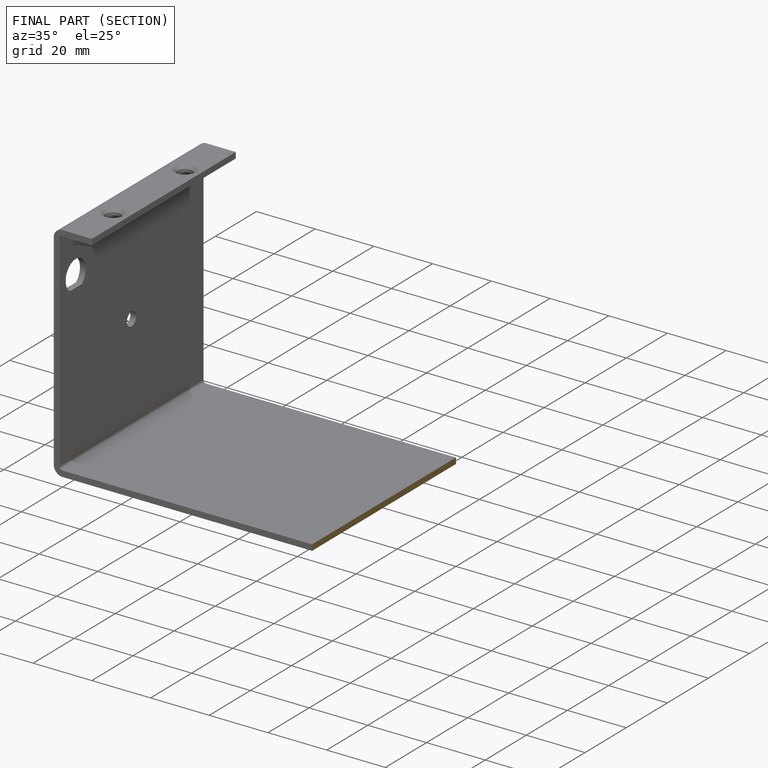
[diagram: finished part — half-section view (interior)]
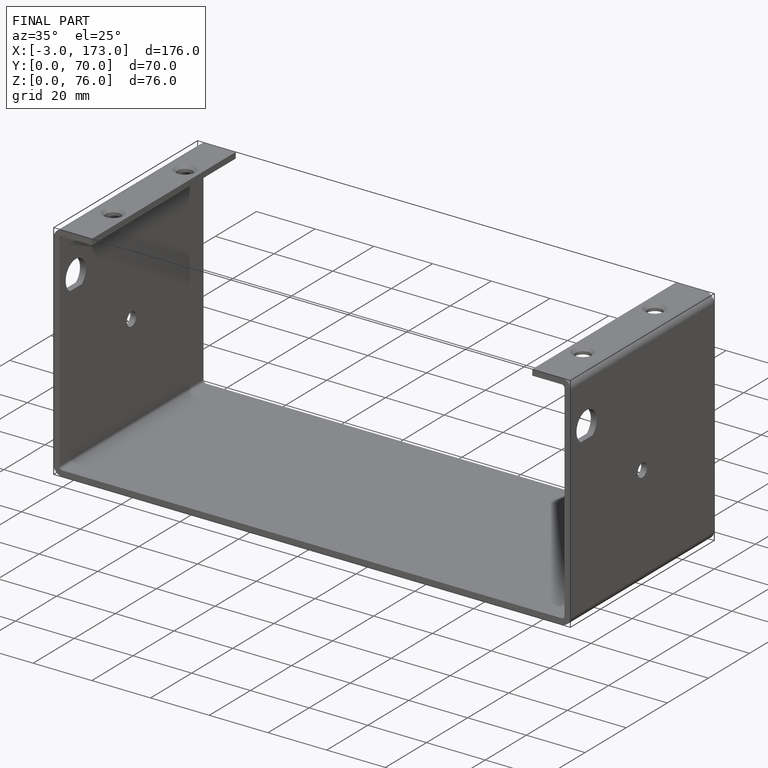
[diagram: finished part — iso view with bounding-box wireframe]
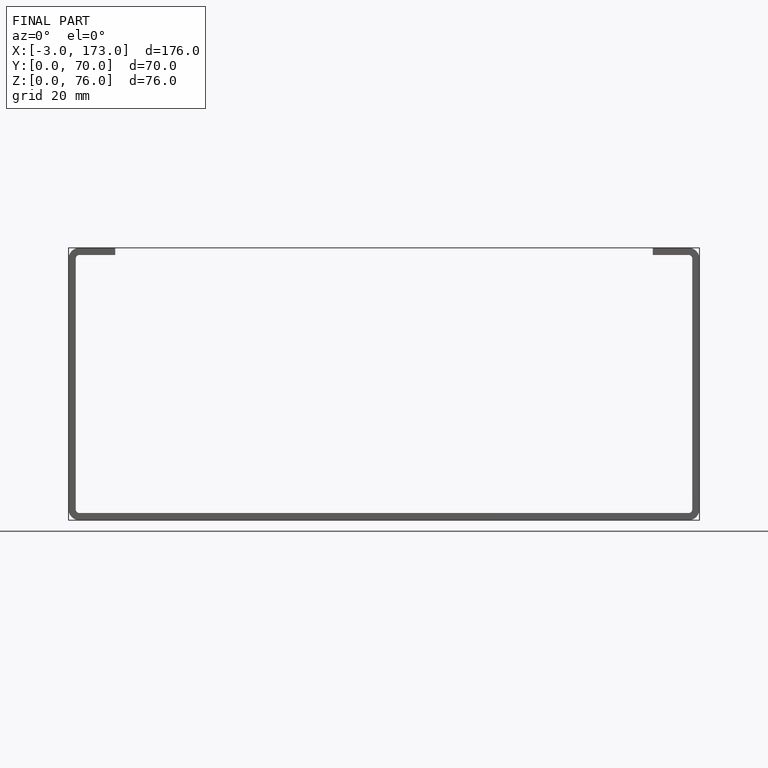
[diagram: finished part — front view with bounding-box wireframe]
